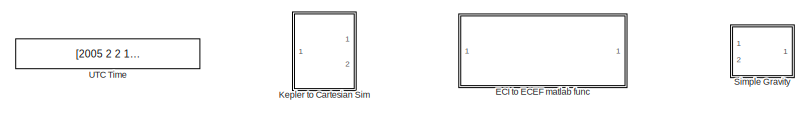
[diagram: root canvas - part 1/2, left side, full height]
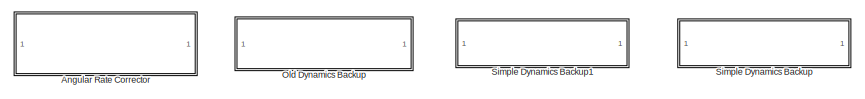
[diagram: root canvas - part 2/2, middle right region]
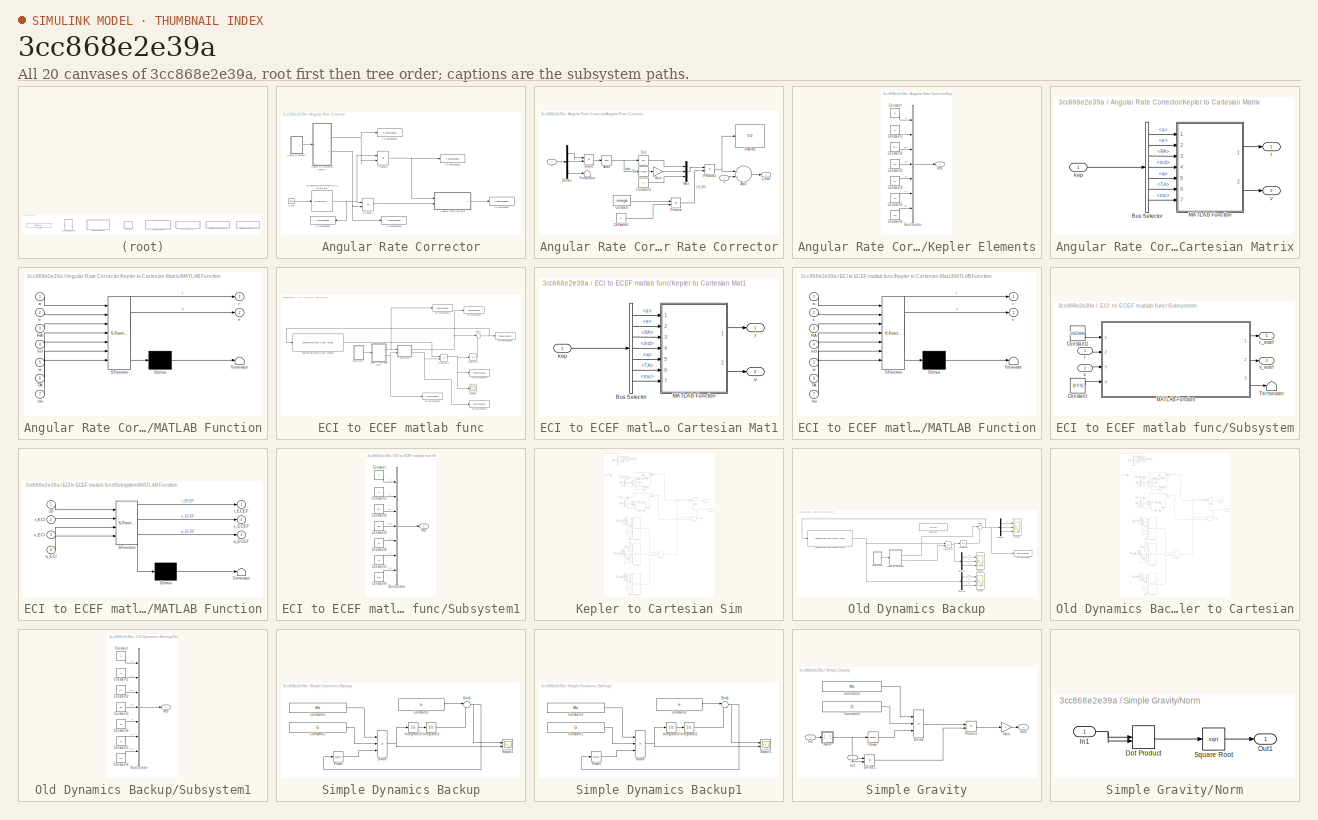
[diagram: thumbnail index - all 20 canvases of the model, root first then tree order]
MODEL slx_3cc868e2e39a
KIND model
CONFIG AbsTol = auto
CONFIG EnableMultiTasking = off
CONFIG FixedStep = auto
CONFIG MaxStep = auto
CONFIG MinStep = auto
CONFIG RelTol = 1e-3
CONFIG SampleTimeConstraint = Unconstrained
CONFIG Solver = VariableStepAuto
CONFIG SolverName = VariableStepAuto
CONFIG StartTime = 0.0
CONFIG StopTime = 10.0
BLOCK [SubSystem] Angular Rate Corrector
  Commented = on
  Ports = []
  RequestExecContextInheritance = off
BLOCK [SubSystem] Angular Rate Corrector/Angular Rate Corrector
  Commented = on
  Ports = [2, 1]
  RequestExecContextInheritance = off
BLOCK [Sum] Angular Rate Corrector/Angular Rate Corrector/Add
  InputSameDT = off
  OutDataTypeStr = Inherit: Inherit via internal rule
  Ports = [2, 1]
  SaturateOnIntegerOverflow = off
BLOCK [Trigonometry] Angular Rate Corrector/Angular Rate Corrector/Atan
  Operator = atan
  Ports = [1, 1]
BLOCK [Constant] Angular Rate Corrector/Angular Rate Corrector/Constant
  Value = omega
BLOCK [Constant] Angular Rate Corrector/Angular Rate Corrector/Constant1
  Value = a
BLOCK [Constant] Angular Rate Corrector/Angular Rate Corrector/Constant2
  Value = 0
BLOCK [Trigonometry] Angular Rate Corrector/Angular Rate Corrector/Cos
  Operator = cos
  Ports = [1, 1]
BLOCK [Demux] Angular Rate Corrector/Angular Rate Corrector/Demux
  DisplayOption = bar
  Outputs = 3
  Ports = [1, 3]
BLOCK [Display] Angular Rate Corrector/Angular Rate Corrector/Display
  Decimation = 1
  Ports = [1]
BLOCK [Product] Angular Rate Corrector/Angular Rate Corrector/Divide
  InputSameDT = off
  Inputs = */
  OutDataTypeStr = Inherit: Inherit via internal rule
  Ports = [2, 1]
  RndMeth = Floor
  SaturateOnIntegerOverflow = off
BLOCK [Gain] Angular Rate Corrector/Angular Rate Corrector/Gain
  Gain = -1
  OutDataTypeStr = Inherit: Inherit via internal rule
  ParamDataTypeStr = Inherit: Inherit via internal rule
  SaturateOnIntegerOverflow = off
BLOCK [Mux] Angular Rate Corrector/Angular Rate Corrector/Mux
  DisplayOption = bar
  Inputs = 3
  Ports = [3, 1]
BLOCK [Product] Angular Rate Corrector/Angular Rate Corrector/Product
  InputSameDT = off
  OutDataTypeStr = Inherit: Inherit via internal rule
  Ports = [2, 1]
  RndMeth = Floor
  SaturateOnIntegerOverflow = off
BLOCK [Product] Angular Rate Corrector/Angular Rate Corrector/Product1
  InputSameDT = off
  OutDataTypeStr = Inherit: Inherit via internal rule
  Ports = [2, 1]
  RndMeth = Floor
  SaturateOnIntegerOverflow = off
BLOCK [Trigonometry] Angular Rate Corrector/Angular Rate Corrector/Sin
  Ports = [1, 1]
BLOCK [Terminator] Angular Rate Corrector/Angular Rate Corrector/Terminator
BLOCK [Inport] Angular Rate Corrector/Angular Rate Corrector/r
  IconDisplay = Port number
BLOCK [Inport] Angular Rate Corrector/Angular Rate Corrector/v
  IconDisplay = Port number
  Port = 2
BLOCK [Outport] Angular Rate Corrector/Angular Rate Corrector/v_ecef
  IconDisplay = Port number
BLOCK [Clock] Angular Rate Corrector/Clock
  Commented = on
BLOCK [Reference] Angular Rate Corrector/Direction Cosine Matrix ECI to ECEF  REF=aerolibtransform2/Direction Cosine Matrix
ECI to ECEF
  AttributesFormatString = %<red>
  Commented = on
  Ports = [1, 1]
  SourceBlock = aerolibtransform2/Direction Cosine Matrix\nECI to ECEF
  SourceProductBaseCode = AE
  SourceProductName = Aerospace Blockset
  SourceType = DCMECItoECEF
BLOCK [SubSystem] Angular Rate Corrector/Kepler Elements
  Commented = on
  Ports = [0, 1]
  RequestExecContextInheritance = off
BLOCK [BusCreator] Angular Rate Corrector/Kepler Elements/Bus Creator
  DisplayOption = bar
  InheritFromInputs = on
  Inputs = 7
  Ports = [7, 1]
BLOCK [Constant] Angular Rate Corrector/Kepler Elements/Constant
  Value = a
BLOCK [Constant] Angular Rate Corrector/Kepler Elements/Constant1
  Value = e
BLOCK [Constant] Angular Rate Corrector/Kepler Elements/Constant2
  Value = RA
BLOCK [Constant] Angular Rate Corrector/Kepler Elements/Constant3
  Value = incl
BLOCK [Constant] Angular Rate Corrector/Kepler Elements/Constant4
  Value = w
BLOCK [Constant] Angular Rate Corrector/Kepler Elements/Constant5
  Value = TA
BLOCK [Constant] Angular Rate Corrector/Kepler Elements/Constant6
  Value = mu
BLOCK [Outport] Angular Rate Corrector/Kepler Elements/kep
  IconDisplay = Port number
BLOCK [SubSystem] Angular Rate Corrector/Kepler to Cartesian Matrix
  Commented = on
  Ports = [1, 2]
  RequestExecContextInheritance = off
BLOCK [BusSelector] Angular Rate Corrector/Kepler to Cartesian Matrix/Bus Selector
  OutputAsBus = off
  OutputSignals = a,e,RA,incl,w,TA,mu
  Ports = [1, 7]
BLOCK [SubSystem] Angular Rate Corrector/Kepler to Cartesian Matrix/MATLAB Function
  ErrorFcn = Stateflow.Translate.translate
  PermitHierarchicalResolution = ExplicitOnly
  Ports = [7, 2]
  RequestExecContextInheritance = off
  SFBlockType = MATLAB Function
  TreatAsAtomicUnit = on
BLOCK [Demux] Angular Rate Corrector/Kepler to Cartesian Matrix/MATLAB Function/ Demux 
  Outputs = 1
  Ports = [1, 1]
BLOCK [S-Function] Angular Rate Corrector/Kepler to Cartesian Matrix/MATLAB Function/ SFunction 
  EnableBusSupport = on
  FunctionName = sf_sfun
  PortCounts = [7 3]
  Ports = [7, 3]
  SFcnIsStateOwnerBlock = off
  SFunctionDeploymentMode = off
  Tag = Stateflow S-Function 2
BLOCK [Terminator] Angular Rate Corrector/Kepler to Cartesian Matrix/MATLAB Function/ Terminator 
BLOCK [Inport] Angular Rate Corrector/Kepler to Cartesian Matrix/MATLAB Function/RA
  IconDisplay = Port number
  Port = 3
BLOCK [Inport] Angular Rate Corrector/Kepler to Cartesian Matrix/MATLAB Function/TA
  IconDisplay = Port number
  Port = 6
BLOCK [Inport] Angular Rate Corrector/Kepler to Cartesian Matrix/MATLAB Function/a
  IconDisplay = Port number
BLOCK [Inport] Angular Rate Corrector/Kepler to Cartesian Matrix/MATLAB Function/e
  IconDisplay = Port number
  Port = 2
BLOCK [Inport] Angular Rate Corrector/Kepler to Cartesian Matrix/MATLAB Function/incl
  IconDisplay = Port number
  Port = 4
BLOCK [Inport] Angular Rate Corrector/Kepler to Cartesian Matrix/MATLAB Function/mu
  IconDisplay = Port number
  Port = 7
BLOCK [Outport] Angular Rate Corrector/Kepler to Cartesian Matrix/MATLAB Function/r
  IconDisplay = Port number
BLOCK [Outport] Angular Rate Corrector/Kepler to Cartesian Matrix/MATLAB Function/v
  IconDisplay = Port number
  Port = 2
BLOCK [Inport] Angular Rate Corrector/Kepler to Cartesian Matrix/MATLAB Function/w
  IconDisplay = Port number
  Port = 5
BLOCK [Inport] Angular Rate Corrector/Kepler to Cartesian Matrix/kep
  IconDisplay = Port number
BLOCK [Outport] Angular Rate Corrector/Kepler to Cartesian Matrix/r
  IconDisplay = Port number
BLOCK [Outport] Angular Rate Corrector/Kepler to Cartesian Matrix/v
  IconDisplay = Port number
  Port = 2
BLOCK [Product] Angular Rate Corrector/Product1
  Commented = on
  InputSameDT = off
  Multiplication = Matrix(*)
  OutDataTypeStr = Inherit: Inherit via internal rule
  Ports = [2, 1]
  RndMeth = Floor
  SaturateOnIntegerOverflow = off
BLOCK [Product] Angular Rate Corrector/Product2
  Commented = on
  InputSameDT = off
  Multiplication = Matrix(*)
  OutDataTypeStr = Inherit: Inherit via internal rule
  Ports = [2, 1]
  RndMeth = Floor
  SaturateOnIntegerOverflow = off
BLOCK [ToWorkspace] Angular Rate Corrector/To Workspace2
  Commented = on
  FixptAsFi = on
  MaxDataPoints = inf
  Ports = [1]
  SampleTime = -1
  VariableName = r0_ecef
BLOCK [ToWorkspace] Angular Rate Corrector/To Workspace4
  Commented = on
  FixptAsFi = on
  MaxDataPoints = inf
  Ports = [1]
  SampleTime = -1
  VariableName = r0_eci
BLOCK [ToWorkspace] Angular Rate Corrector/To Workspace5
  Commented = on
  FixptAsFi = on
  MaxDataPoints = inf
  Ports = [1]
  SampleTime = -1
  VariableName = v0_eci
BLOCK [ToWorkspace] Angular Rate Corrector/To Workspace6
  Commented = on
  FixptAsFi = on
  MaxDataPoints = inf
  Ports = [1]
  SampleTime = -1
  VariableName = dcm
BLOCK [ToWorkspace] Angular Rate Corrector/To Workspace7
  Commented = on
  FixptAsFi = on
  MaxDataPoints = inf
  Ports = [1]
  SampleTime = -1
  VariableName = v0_ecef
BLOCK [SubSystem] ECI to ECEF matlab func
  Commented = on
  Ports = []
  RequestExecContextInheritance = off
BLOCK [Integrator] ECI to ECEF matlab func/Integrator1
  Commented = on
  Ports = [1, 1]
BLOCK [Integrator] ECI to ECEF matlab func/Integrator2
  Commented = on
  InitialConditionSource = external
  Ports = [2, 1]
BLOCK [SubSystem] ECI to ECEF matlab func/Kepler to Cartesian Mat1
  Commented = on
  Ports = [1, 2]
  RequestExecContextInheritance = off
BLOCK [BusSelector] ECI to ECEF matlab func/Kepler to Cartesian Mat1/Bus Selector
  OutputAsBus = off
  OutputSignals = a,e,RA,incl,w,TA,mu
  Ports = [1, 7]
BLOCK [SubSystem] ECI to ECEF matlab func/Kepler to Cartesian Mat1/MATLAB Function
  ErrorFcn = Stateflow.Translate.translate
  PermitHierarchicalResolution = ExplicitOnly
  Ports = [7, 2]
  RequestExecContextInheritance = off
  SFBlockType = MATLAB Function
  TreatAsAtomicUnit = on
BLOCK [Demux] ECI to ECEF matlab func/Kepler to Cartesian Mat1/MATLAB Function/ Demux 
  Outputs = 1
  Ports = [1, 1]
BLOCK [S-Function] ECI to ECEF matlab func/Kepler to Cartesian Mat1/MATLAB Function/ SFunction 
  EnableBusSupport = on
  FunctionName = sf_sfun
  PortCounts = [7 3]
  Ports = [7, 3]
  SFcnIsStateOwnerBlock = off
  SFunctionDeploymentMode = off
  Tag = Stateflow S-Function 1
BLOCK [Terminator] ECI to ECEF matlab func/Kepler to Cartesian Mat1/MATLAB Function/ Terminator 
BLOCK [Inport] ECI to ECEF matlab func/Kepler to Cartesian Mat1/MATLAB Function/RA
  IconDisplay = Port number
  Port = 3
BLOCK [Inport] ECI to ECEF matlab func/Kepler to Cartesian Mat1/MATLAB Function/TA
  IconDisplay = Port number
  Port = 6
BLOCK [Inport] ECI to ECEF matlab func/Kepler to Cartesian Mat1/MATLAB Function/a
  IconDisplay = Port number
BLOCK [Inport] ECI to ECEF matlab func/Kepler to Cartesian Mat1/MATLAB Function/e
  IconDisplay = Port number
  Port = 2
BLOCK [Inport] ECI to ECEF matlab func/Kepler to Cartesian Mat1/MATLAB Function/incl
  IconDisplay = Port number
  Port = 4
BLOCK [Inport] ECI to ECEF matlab func/Kepler to Cartesian Mat1/MATLAB Function/mu
  IconDisplay = Port number
  Port = 7
BLOCK [Outport] ECI to ECEF matlab func/Kepler to Cartesian Mat1/MATLAB Function/r
  IconDisplay = Port number
BLOCK [Outport] ECI to ECEF matlab func/Kepler to Cartesian Mat1/MATLAB Function/v
  IconDisplay = Port number
  Port = 2
BLOCK [Inport] ECI to ECEF matlab func/Kepler to Cartesian Mat1/MATLAB Function/w
  IconDisplay = Port number
  Port = 5
BLOCK [Inport] ECI to ECEF matlab func/Kepler to Cartesian Mat1/kep
  IconDisplay = Port number
BLOCK [Outport] ECI to ECEF matlab func/Kepler to Cartesian Mat1/r
  IconDisplay = Port number
BLOCK [Outport] ECI to ECEF matlab func/Kepler to Cartesian Mat1/v
  IconDisplay = Port number
  Port = 2
BLOCK [Scope] ECI to ECEF matlab func/Scope1
  Commented = on
  Floating = off
  NumInputPorts = 1
  Ports = [1]
  ScopeSpecificationString = Simulink.scopes.TimeScopeBlockCfg('CurrentConfiguration', extmgr.ConfigurationSet(extmgr.Configuration('Core','General UI',true),extmgr.Configuration('Core','Source UI',true),extmgr.Configuration('Sources','WiredSimulink',true,'DataLoggingVariableName','ScopeData1'),extmgr.Configuration('Visuals','Time Domain',true,'SerializedDisplays',{struct('MinYLimReal','-8679.45183','MaxYLimReal','6592.60236'...<+1480ch>
BLOCK [Reference] ECI to ECEF matlab func/Spherical Harmonic Gravity Model2  REF=aerolibgravity2/Spherical Harmonic Gravity Model
  Commented = on
  Ports = [1, 1]
  SourceBlock = aerolibgravity2/Spherical Harmonic Gravity Model
  SourceProductBaseCode = AE
  SourceProductName = Aerospace Blockset
  SourceType = Spherical Harmonic Gravity Model
BLOCK [SubSystem] ECI to ECEF matlab func/Subsystem
  Commented = on
  Ports = [2, 2]
  RequestExecContextInheritance = off
BLOCK [Constant] ECI to ECEF matlab func/Subsystem/Constant
  Value = [0 0 0]
BLOCK [Constant] ECI to ECEF matlab func/Subsystem/Constant1
  Value = 2453404
BLOCK [SubSystem] ECI to ECEF matlab func/Subsystem/MATLAB Function
  ErrorFcn = Stateflow.Translate.translate
  PermitHierarchicalResolution = ExplicitOnly
  Ports = [4, 3]
  RequestExecContextInheritance = off
  SFBlockType = MATLAB Function
  TreatAsAtomicUnit = on
BLOCK [Demux] ECI to ECEF matlab func/Subsystem/MATLAB Function/ Demux 
  Outputs = 1
  Ports = [1, 1]
BLOCK [S-Function] ECI to ECEF matlab func/Subsystem/MATLAB Function/ SFunction 
  EnableBusSupport = on
  FunctionName = sf_sfun
  PortCounts = [4 4]
  Ports = [4, 4]
  SFcnIsStateOwnerBlock = off
  SFunctionDeploymentMode = off
  Tag = Stateflow S-Function 3
BLOCK [Terminator] ECI to ECEF matlab func/Subsystem/MATLAB Function/ Terminator 
BLOCK [Inport] ECI to ECEF matlab func/Subsystem/MATLAB Function/JD
  IconDisplay = Port number
BLOCK [Outport] ECI to ECEF matlab func/Subsystem/MATLAB Function/a_ECEF
  IconDisplay = Port number
  Port = 3
BLOCK [Inport] ECI to ECEF matlab func/Subsystem/MATLAB Function/a_ECI
  IconDisplay = Port number
  Port = 4
BLOCK [Outport] ECI to ECEF matlab func/Subsystem/MATLAB Function/r_ECEF
  IconDisplay = Port number
BLOCK [Inport] ECI to ECEF matlab func/Subsystem/MATLAB Function/r_ECI
  IconDisplay = Port number
  Port = 2
BLOCK [Outport] ECI to ECEF matlab func/Subsystem/MATLAB Function/v_ECEF
  IconDisplay = Port number
  Port = 2
BLOCK [Inport] ECI to ECEF matlab func/Subsystem/MATLAB Function/v_ECI
  IconDisplay = Port number
  Port = 3
BLOCK [Terminator] ECI to ECEF matlab func/Subsystem/Terminator
BLOCK [Inport] ECI to ECEF matlab func/Subsystem/r
  IconDisplay = Port number
BLOCK [Outport] ECI to ECEF matlab func/Subsystem/r_ecef
  IconDisplay = Port number
BLOCK [Inport] ECI to ECEF matlab func/Subsystem/v
  IconDisplay = Port number
  Port = 2
BLOCK [Outport] ECI to ECEF matlab func/Subsystem/v_ecef
  IconDisplay = Port number
  Port = 2
BLOCK [SubSystem] ECI to ECEF matlab func/Subsystem1
  Commented = on
  Ports = [0, 1]
  RequestExecContextInheritance = off
BLOCK [BusCreator] ECI to ECEF matlab func/Subsystem1/Bus Creator
  DisplayOption = bar
  InheritFromInputs = on
  Inputs = 7
  Ports = [7, 1]
BLOCK [Constant] ECI to ECEF matlab func/Subsystem1/Constant
  Value = a
BLOCK [Constant] ECI to ECEF matlab func/Subsystem1/Constant1
  Value = e
BLOCK [Constant] ECI to ECEF matlab func/Subsystem1/Constant2
  Value = RA
BLOCK [Constant] ECI to ECEF matlab func/Subsystem1/Constant3
  Value = incl
BLOCK [Constant] ECI to ECEF matlab func/Subsystem1/Constant4
  Value = w
BLOCK [Constant] ECI to ECEF matlab func/Subsystem1/Constant5
  Value = TA
BLOCK [Constant] ECI to ECEF matlab func/Subsystem1/Constant6
  Value = mu
BLOCK [Outport] ECI to ECEF matlab func/Subsystem1/kep
  IconDisplay = Port number
BLOCK [Sum] ECI to ECEF matlab func/Sum1
  Commented = on
  IconShape = round
  InputSameDT = off
  Inputs = |++
  OutDataTypeStr = Inherit: Inherit via internal rule
  Ports = [2, 1]
  SaturateOnIntegerOverflow = off
BLOCK [ToWorkspace] ECI to ECEF matlab func/To Workspace10
  Commented = on
  FixptAsFi = on
  MaxDataPoints = inf
  Ports = [1]
  SampleTime = -1
  Save2DSignal = 2-D array (concatenate along first dimension)
  VariableName = v_ecef
BLOCK [ToWorkspace] ECI to ECEF matlab func/To Workspace11
  Commented = on
  FixptAsFi = on
  MaxDataPoints = inf
  Ports = [1]
  SampleTime = -1
  VariableName = r0_efi
BLOCK [ToWorkspace] ECI to ECEF matlab func/To Workspace12
  Commented = on
  FixptAsFi = on
  MaxDataPoints = inf
  Ports = [1]
  SampleTime = -1
  VariableName = v0_efi
BLOCK [ToWorkspace] ECI to ECEF matlab func/To Workspace14
  Commented = on
  FixptAsFi = on
  MaxDataPoints = inf
  Ports = [1]
  SampleTime = -1
  VariableName = v0_ecef
BLOCK [ToWorkspace] ECI to ECEF matlab func/To Workspace8
  Commented = on
  FixptAsFi = on
  MaxDataPoints = inf
  Ports = [1]
  SampleTime = -1
  VariableName = r_ecef
BLOCK [ToWorkspace] ECI to ECEF matlab func/To Workspace9
  Commented = on
  FixptAsFi = on
  MaxDataPoints = inf
  Ports = [1]
  SampleTime = -1
  VariableName = r0_ecef
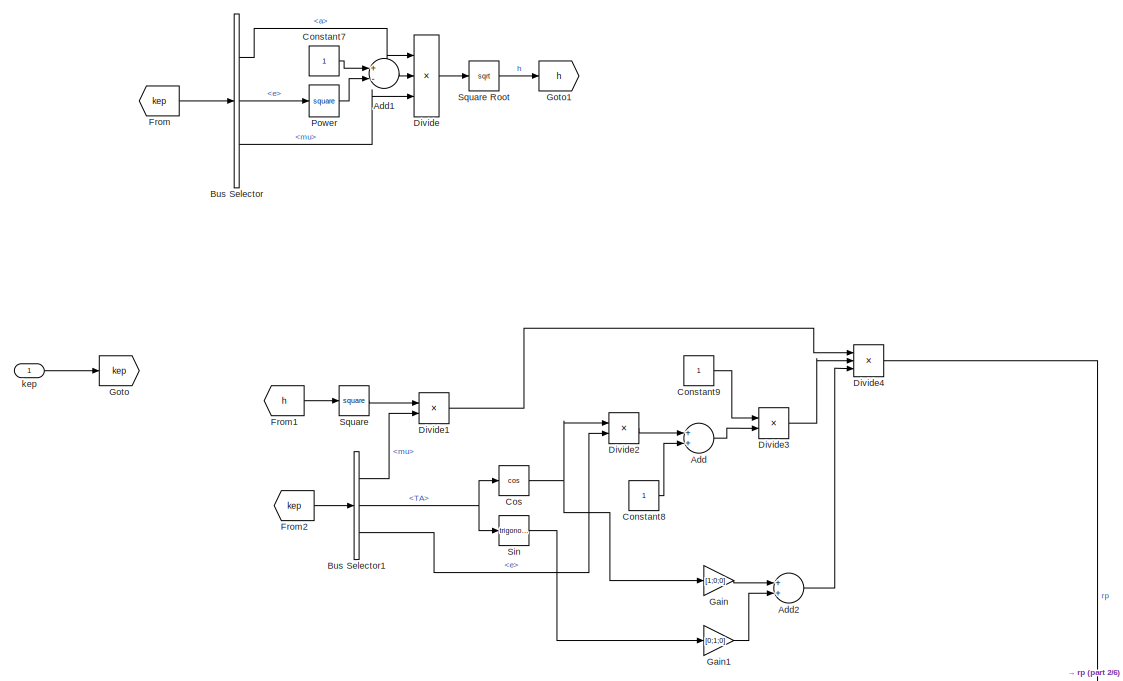
[diagram: Kepler to Cartesian Sim - part 1/6, top left region]
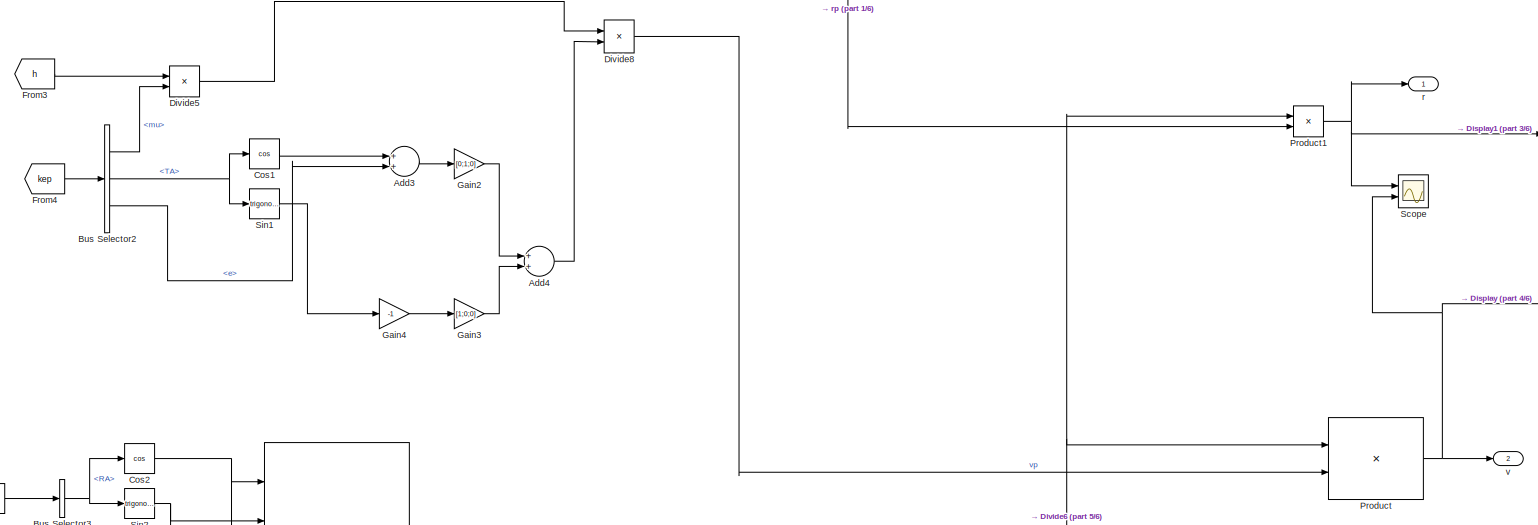
[diagram: Kepler to Cartesian Sim - part 2/6, full width, middle band]
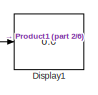
[diagram: Kepler to Cartesian Sim - part 3/6, top right region]
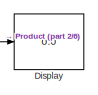
[diagram: Kepler to Cartesian Sim - part 4/6, middle right region]
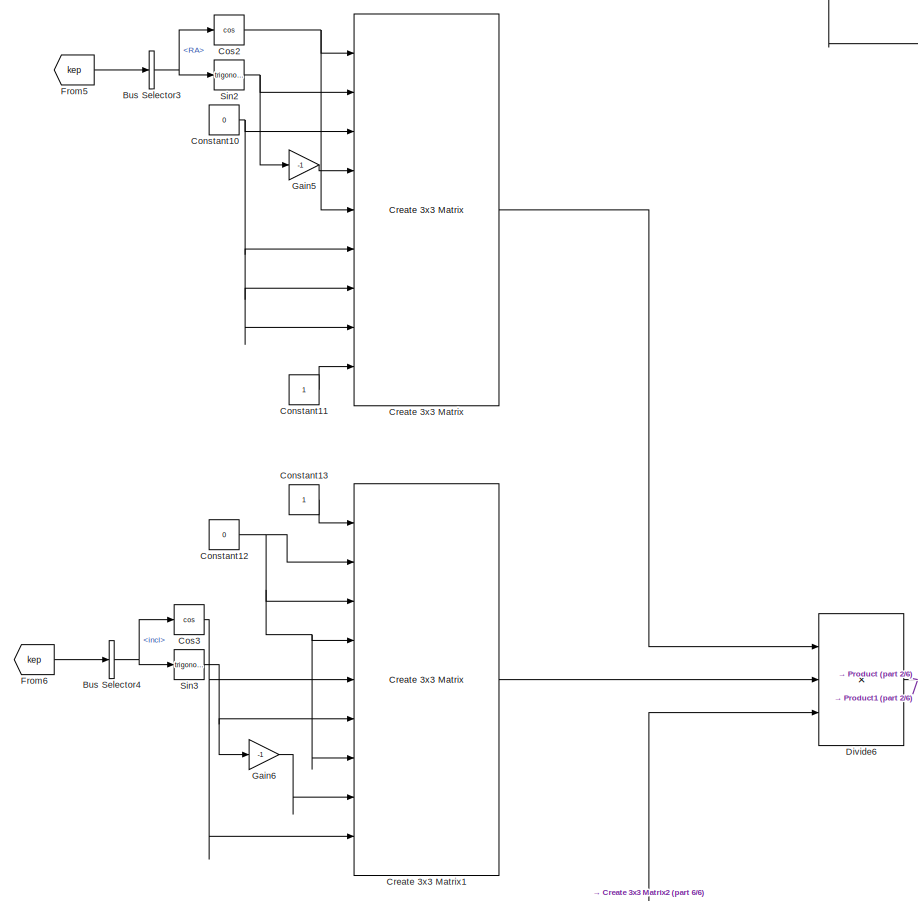
[diagram: Kepler to Cartesian Sim - part 5/6, middle left region]
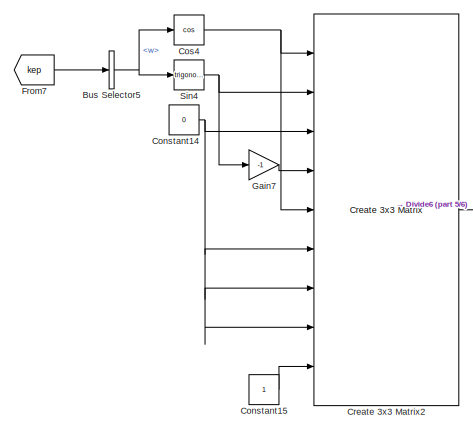
[diagram: Kepler to Cartesian Sim - part 6/6, bottom left region]
BLOCK [SubSystem] Kepler to Cartesian Sim
  Commented = on
  Ports = [1, 2]
  RequestExecContextInheritance = off
BLOCK [Sum] Kepler to Cartesian Sim/Add
  InputSameDT = off
  OutDataTypeStr = Inherit: Inherit via internal rule
  Ports = [2, 1]
  SaturateOnIntegerOverflow = off
BLOCK [Sum] Kepler to Cartesian Sim/Add1
  InputSameDT = off
  Inputs = +-
  OutDataTypeStr = Inherit: Inherit via internal rule
  Ports = [2, 1]
  SaturateOnIntegerOverflow = off
BLOCK [Sum] Kepler to Cartesian Sim/Add2
  InputSameDT = off
  OutDataTypeStr = Inherit: Inherit via internal rule
  Ports = [2, 1]
  SaturateOnIntegerOverflow = off
BLOCK [Sum] Kepler to Cartesian Sim/Add3
  InputSameDT = off
  OutDataTypeStr = Inherit: Inherit via internal rule
  Ports = [2, 1]
  SaturateOnIntegerOverflow = off
BLOCK [Sum] Kepler to Cartesian Sim/Add4
  InputSameDT = off
  OutDataTypeStr = Inherit: Inherit via internal rule
  Ports = [2, 1]
  SaturateOnIntegerOverflow = off
BLOCK [BusSelector] Kepler to Cartesian Sim/Bus Selector
  OutputAsBus = off
  OutputSignals = a,e,mu
  Ports = [1, 3]
BLOCK [BusSelector] Kepler to Cartesian Sim/Bus Selector1
  OutputAsBus = off
  OutputSignals = mu,TA,e
  Ports = [1, 3]
BLOCK [BusSelector] Kepler to Cartesian Sim/Bus Selector2
  OutputAsBus = off
  OutputSignals = mu,TA,e
  Ports = [1, 3]
BLOCK [BusSelector] Kepler to Cartesian Sim/Bus Selector3
  OutputAsBus = off
  OutputSignals = RA
  Ports = [1, 1]
BLOCK [BusSelector] Kepler to Cartesian Sim/Bus Selector4
  OutputAsBus = off
  OutputSignals = incl
  Ports = [1, 1]
BLOCK [BusSelector] Kepler to Cartesian Sim/Bus Selector5
  OutputAsBus = off
  OutputSignals = w
  Ports = [1, 1]
BLOCK [Constant] Kepler to Cartesian Sim/Constant10
  Value = 0
BLOCK [Constant] Kepler to Cartesian Sim/Constant11
BLOCK [Constant] Kepler to Cartesian Sim/Constant12
  Value = 0
BLOCK [Constant] Kepler to Cartesian Sim/Constant13
BLOCK [Constant] Kepler to Cartesian Sim/Constant14
  Value = 0
BLOCK [Constant] Kepler to Cartesian Sim/Constant15
BLOCK [Constant] Kepler to Cartesian Sim/Constant7
BLOCK [Constant] Kepler to Cartesian Sim/Constant8
BLOCK [Constant] Kepler to Cartesian Sim/Constant9
BLOCK [Trigonometry] Kepler to Cartesian Sim/Cos
  Operator = cos
  Ports = [1, 1]
BLOCK [Trigonometry] Kepler to Cartesian Sim/Cos1
  Operator = cos
  Ports = [1, 1]
BLOCK [Trigonometry] Kepler to Cartesian Sim/Cos2
  Operator = cos
  Ports = [1, 1]
BLOCK [Trigonometry] Kepler to Cartesian Sim/Cos3
  Operator = cos
  Ports = [1, 1]
BLOCK [Trigonometry] Kepler to Cartesian Sim/Cos4
  Operator = cos
  Ports = [1, 1]
BLOCK [Reference] Kepler to Cartesian Sim/Create 3x3 Matrix  REF=sharedutil/Create 3x3 Matrix
  Ports = [9, 1]
  SourceBlock = sharedutil/Create 3x3 Matrix
  SourceProductBaseCode = AE
  SourceProductName = Aerospace Blockset
  SourceType = Create 3x3 Matrix
BLOCK [Reference] Kepler to Cartesian Sim/Create 3x3 Matrix1  REF=sharedutil/Create 3x3 Matrix
  Ports = [9, 1]
  SourceBlock = sharedutil/Create 3x3 Matrix
  SourceProductBaseCode = AE
  SourceProductName = Aerospace Blockset
  SourceType = Create 3x3 Matrix
BLOCK [Reference] Kepler to Cartesian Sim/Create 3x3 Matrix2  REF=sharedutil/Create 3x3 Matrix
  Ports = [9, 1]
  SourceBlock = sharedutil/Create 3x3 Matrix
  SourceProductBaseCode = AE
  SourceProductName = Aerospace Blockset
  SourceType = Create 3x3 Matrix
BLOCK [Display] Kepler to Cartesian Sim/Display
  Decimation = 1
  Ports = [1]
BLOCK [Display] Kepler to Cartesian Sim/Display1
  Decimation = 1
  Ports = [1]
BLOCK [Product] Kepler to Cartesian Sim/Divide
  InputSameDT = off
  Inputs = 3
  OutDataTypeStr = Inherit: Inherit via internal rule
  Ports = [3, 1]
  RndMeth = Floor
  SaturateOnIntegerOverflow = off
BLOCK [Product] Kepler to Cartesian Sim/Divide1
  InputSameDT = off
  Inputs = */
  OutDataTypeStr = Inherit: Inherit via internal rule
  Ports = [2, 1]
  RndMeth = Floor
  SaturateOnIntegerOverflow = off
BLOCK [Product] Kepler to Cartesian Sim/Divide2
  InputSameDT = off
  OutDataTypeStr = Inherit: Inherit via internal rule
  Ports = [2, 1]
  RndMeth = Floor
  SaturateOnIntegerOverflow = off
BLOCK [Product] Kepler to Cartesian Sim/Divide3
  InputSameDT = off
  Inputs = */
  OutDataTypeStr = Inherit: Inherit via internal rule
  Ports = [2, 1]
  RndMeth = Floor
  SaturateOnIntegerOverflow = off
BLOCK [Product] Kepler to Cartesian Sim/Divide4
  InputSameDT = off
  Inputs = 3
  OutDataTypeStr = Inherit: Inherit via internal rule
  Ports = [3, 1]
  RndMeth = Floor
  SaturateOnIntegerOverflow = off
BLOCK [Product] Kepler to Cartesian Sim/Divide5
  InputSameDT = off
  Inputs = /*
  OutDataTypeStr = Inherit: Inherit via internal rule
  Ports = [2, 1]
  RndMeth = Floor
  SaturateOnIntegerOverflow = off
BLOCK [Product] Kepler to Cartesian Sim/Divide6
  InputSameDT = off
  Inputs = 3
  Multiplication = Matrix(*)
  OutDataTypeStr = Inherit: Inherit via internal rule
  Ports = [3, 1]
  RndMeth = Floor
  SaturateOnIntegerOverflow = off
BLOCK [Product] Kepler to Cartesian Sim/Divide8
  InputSameDT = off
  OutDataTypeStr = Inherit: Inherit via internal rule
  Ports = [2, 1]
  RndMeth = Floor
  SaturateOnIntegerOverflow = off
BLOCK [From] Kepler to Cartesian Sim/From
  GotoTag = kep
BLOCK [From] Kepler to Cartesian Sim/From1
  GotoTag = h
BLOCK [From] Kepler to Cartesian Sim/From2
  GotoTag = kep
BLOCK [From] Kepler to Cartesian Sim/From3
  GotoTag = h
BLOCK [From] Kepler to Cartesian Sim/From4
  GotoTag = kep
BLOCK [From] Kepler to Cartesian Sim/From5
  GotoTag = kep
BLOCK [From] Kepler to Cartesian Sim/From6
  GotoTag = kep
BLOCK [From] Kepler to Cartesian Sim/From7
  GotoTag = kep
BLOCK [Gain] Kepler to Cartesian Sim/Gain
  Gain = [1;0;0]
  OutDataTypeStr = Inherit: Inherit via internal rule
  ParamDataTypeStr = Inherit: Inherit via internal rule
  SaturateOnIntegerOverflow = off
BLOCK [Gain] Kepler to Cartesian Sim/Gain1
  Gain = [0;1;0]
  OutDataTypeStr = Inherit: Inherit via internal rule
  ParamDataTypeStr = Inherit: Inherit via internal rule
  SaturateOnIntegerOverflow = off
BLOCK [Gain] Kepler to Cartesian Sim/Gain2
  Gain = [0;1;0]
  OutDataTypeStr = Inherit: Inherit via internal rule
  ParamDataTypeStr = Inherit: Inherit via internal rule
  SaturateOnIntegerOverflow = off
BLOCK [Gain] Kepler to Cartesian Sim/Gain3
  Gain = [1;0;0]
  OutDataTypeStr = Inherit: Inherit via internal rule
  ParamDataTypeStr = Inherit: Inherit via internal rule
  SaturateOnIntegerOverflow = off
BLOCK [Gain] Kepler to Cartesian Sim/Gain4
  Gain = -1
  OutDataTypeStr = Inherit: Inherit via internal rule
  ParamDataTypeStr = Inherit: Inherit via internal rule
  SaturateOnIntegerOverflow = off
BLOCK [Gain] Kepler to Cartesian Sim/Gain5
  Gain = -1
  OutDataTypeStr = Inherit: Inherit via internal rule
  ParamDataTypeStr = Inherit: Inherit via internal rule
  SaturateOnIntegerOverflow = off
BLOCK [Gain] Kepler to Cartesian Sim/Gain6
  Gain = -1
  OutDataTypeStr = Inherit: Inherit via internal rule
  ParamDataTypeStr = Inherit: Inherit via internal rule
  SaturateOnIntegerOverflow = off
BLOCK [Gain] Kepler to Cartesian Sim/Gain7
  Gain = -1
  OutDataTypeStr = Inherit: Inherit via internal rule
  ParamDataTypeStr = Inherit: Inherit via internal rule
  SaturateOnIntegerOverflow = off
BLOCK [Goto] Kepler to Cartesian Sim/Goto
  GotoTag = kep
BLOCK [Goto] Kepler to Cartesian Sim/Goto1
  GotoTag = h
BLOCK [Math] Kepler to Cartesian Sim/Power
  Operator = square
  Ports = [1, 1]
  SignedPower = off
BLOCK [Product] Kepler to Cartesian Sim/Product
  InputSameDT = off
  Multiplication = Matrix(*)
  OutDataTypeStr = Inherit: Inherit via internal rule
  Ports = [2, 1]
  RndMeth = Floor
  SaturateOnIntegerOverflow = off
BLOCK [Product] Kepler to Cartesian Sim/Product1
  InputSameDT = off
  Multiplication = Matrix(*)
  OutDataTypeStr = Inherit: Inherit via internal rule
  Ports = [2, 1]
  RndMeth = Floor
  SaturateOnIntegerOverflow = off
BLOCK [Scope] Kepler to Cartesian Sim/Scope
  Floating = off
  NumInputPorts = 2
  Ports = [2]
  ScopeSpecificationString = Simulink.scopes.TimeScopeBlockCfg('CurrentConfiguration', extmgr.ConfigurationSet(extmgr.Configuration('Core','General UI',true),extmgr.Configuration('Core','Source UI',true),extmgr.Configuration('Sources','WiredSimulink',true),extmgr.Configuration('Visuals','Time Domain',true,'SerializedDisplays',{struct('MinYLimReal','-837500.00000','MaxYLimReal','7537500.00000','YLabelReal','','MinYLimMag','   ...<+2315ch>
BLOCK [Trigonometry] Kepler to Cartesian Sim/Sin
  Ports = [1, 1]
BLOCK [Trigonometry] Kepler to Cartesian Sim/Sin1
  Ports = [1, 1]
BLOCK [Trigonometry] Kepler to Cartesian Sim/Sin2
  Ports = [1, 1]
BLOCK [Trigonometry] Kepler to Cartesian Sim/Sin3
  Ports = [1, 1]
BLOCK [Trigonometry] Kepler to Cartesian Sim/Sin4
  Ports = [1, 1]
BLOCK [Math] Kepler to Cartesian Sim/Square
  Operator = square
  Ports = [1, 1]
  SignedPower = off
BLOCK [Sqrt] Kepler to Cartesian Sim/Square Root
BLOCK [Inport] Kepler to Cartesian Sim/kep
  IconDisplay = Port number
BLOCK [Outport] Kepler to Cartesian Sim/r
  IconDisplay = Port number
BLOCK [Outport] Kepler to Cartesian Sim/v
  IconDisplay = Port number
  Port = 2
BLOCK [SubSystem] Old Dynamics Backup
  Commented = on
  Ports = []
  RequestExecContextInheritance = off
BLOCK [Constant] Old Dynamics Backup/Constant
  Commented = on
  Value = [h 0 0]
BLOCK [Demux] Old Dynamics Backup/Demux
  Commented = on
  DisplayOption = bar
  Outputs = 3
  Ports = [1, 3]
BLOCK [Demux] Old Dynamics Backup/Demux1
  Commented = on
  DisplayOption = bar
  Outputs = 3
  Ports = [1, 3]
BLOCK [Demux] Old Dynamics Backup/Demux2
  Commented = on
  DisplayOption = bar
  Outputs = 3
  Ports = [1, 3]
BLOCK [Integrator] Old Dynamics Backup/Integrator
  Commented = on
  Ports = [1, 1]
BLOCK [Integrator] Old Dynamics Backup/Integrator1
  Commented = on
  InitialCondition = v0
  InitialConditionSource = external
  Ports = [2, 1]
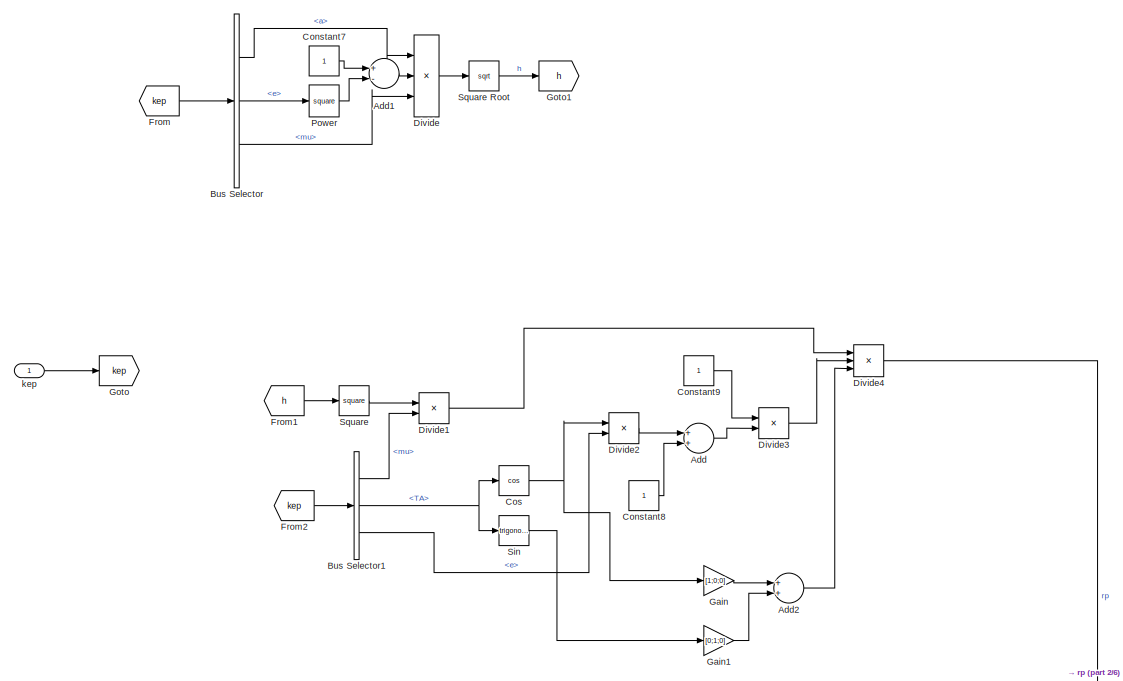
[diagram: Old Dynamics Backup/Kepler to Cartesian - part 1/6, top left region]
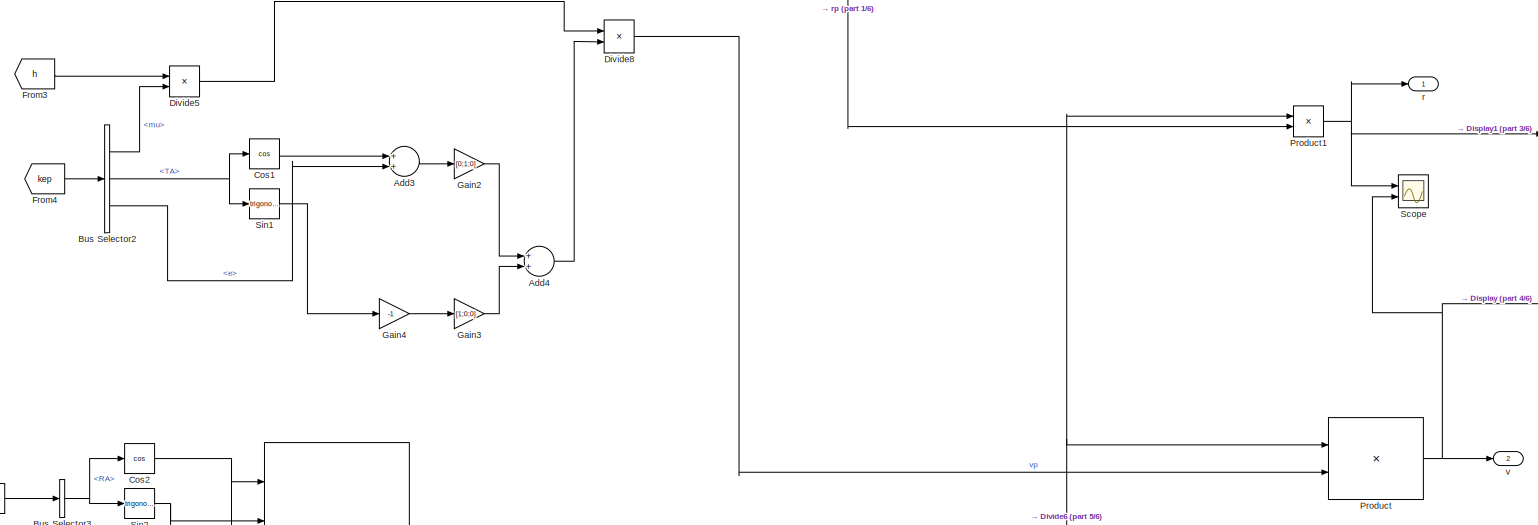
[diagram: Old Dynamics Backup/Kepler to Cartesian - part 2/6, full width, middle band]
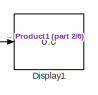
[diagram: Old Dynamics Backup/Kepler to Cartesian - part 3/6, top right region]
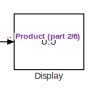
[diagram: Old Dynamics Backup/Kepler to Cartesian - part 4/6, middle right region]
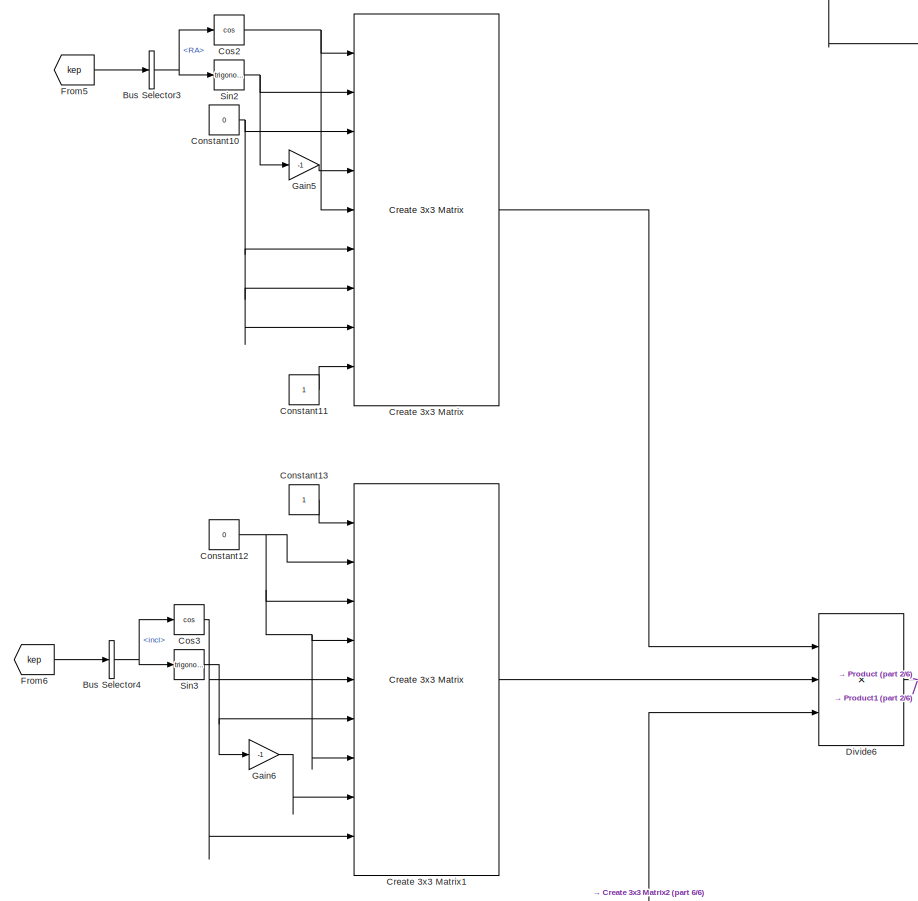
[diagram: Old Dynamics Backup/Kepler to Cartesian - part 5/6, middle left region]
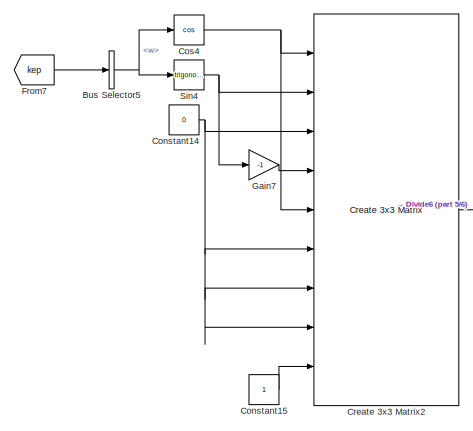
[diagram: Old Dynamics Backup/Kepler to Cartesian - part 6/6, bottom left region]
BLOCK [SubSystem] Old Dynamics Backup/Kepler to Cartesian
  Commented = on
  Ports = [1, 2]
  RequestExecContextInheritance = off
BLOCK [Sum] Old Dynamics Backup/Kepler to Cartesian/Add
  InputSameDT = off
  OutDataTypeStr = Inherit: Inherit via internal rule
  Ports = [2, 1]
  SaturateOnIntegerOverflow = off
BLOCK [Sum] Old Dynamics Backup/Kepler to Cartesian/Add1
  InputSameDT = off
  Inputs = +-
  OutDataTypeStr = Inherit: Inherit via internal rule
  Ports = [2, 1]
  SaturateOnIntegerOverflow = off
BLOCK [Sum] Old Dynamics Backup/Kepler to Cartesian/Add2
  InputSameDT = off
  OutDataTypeStr = Inherit: Inherit via internal rule
  Ports = [2, 1]
  SaturateOnIntegerOverflow = off
BLOCK [Sum] Old Dynamics Backup/Kepler to Cartesian/Add3
  InputSameDT = off
  OutDataTypeStr = Inherit: Inherit via internal rule
  Ports = [2, 1]
  SaturateOnIntegerOverflow = off
BLOCK [Sum] Old Dynamics Backup/Kepler to Cartesian/Add4
  InputSameDT = off
  OutDataTypeStr = Inherit: Inherit via internal rule
  Ports = [2, 1]
  SaturateOnIntegerOverflow = off
BLOCK [BusSelector] Old Dynamics Backup/Kepler to Cartesian/Bus Selector
  OutputAsBus = off
  OutputSignals = a,e,mu
  Ports = [1, 3]
BLOCK [BusSelector] Old Dynamics Backup/Kepler to Cartesian/Bus Selector1
  OutputAsBus = off
  OutputSignals = mu,TA,e
  Ports = [1, 3]
BLOCK [BusSelector] Old Dynamics Backup/Kepler to Cartesian/Bus Selector2
  OutputAsBus = off
  OutputSignals = mu,TA,e
  Ports = [1, 3]
BLOCK [BusSelector] Old Dynamics Backup/Kepler to Cartesian/Bus Selector3
  OutputAsBus = off
  OutputSignals = RA
  Ports = [1, 1]
BLOCK [BusSelector] Old Dynamics Backup/Kepler to Cartesian/Bus Selector4
  OutputAsBus = off
  OutputSignals = incl
  Ports = [1, 1]
BLOCK [BusSelector] Old Dynamics Backup/Kepler to Cartesian/Bus Selector5
  OutputAsBus = off
  OutputSignals = w
  Ports = [1, 1]
BLOCK [Constant] Old Dynamics Backup/Kepler to Cartesian/Constant10
  Value = 0
BLOCK [Constant] Old Dynamics Backup/Kepler to Cartesian/Constant11
BLOCK [Constant] Old Dynamics Backup/Kepler to Cartesian/Constant12
  Value = 0
BLOCK [Constant] Old Dynamics Backup/Kepler to Cartesian/Constant13
BLOCK [Constant] Old Dynamics Backup/Kepler to Cartesian/Constant14
  Value = 0
BLOCK [Constant] Old Dynamics Backup/Kepler to Cartesian/Constant15
BLOCK [Constant] Old Dynamics Backup/Kepler to Cartesian/Constant7
BLOCK [Constant] Old Dynamics Backup/Kepler to Cartesian/Constant8
BLOCK [Constant] Old Dynamics Backup/Kepler to Cartesian/Constant9
BLOCK [Trigonometry] Old Dynamics Backup/Kepler to Cartesian/Cos
  Operator = cos
  Ports = [1, 1]
BLOCK [Trigonometry] Old Dynamics Backup/Kepler to Cartesian/Cos1
  Operator = cos
  Ports = [1, 1]
BLOCK [Trigonometry] Old Dynamics Backup/Kepler to Cartesian/Cos2
  Operator = cos
  Ports = [1, 1]
BLOCK [Trigonometry] Old Dynamics Backup/Kepler to Cartesian/Cos3
  Operator = cos
  Ports = [1, 1]
BLOCK [Trigonometry] Old Dynamics Backup/Kepler to Cartesian/Cos4
  Operator = cos
  Ports = [1, 1]
BLOCK [Reference] Old Dynamics Backup/Kepler to Cartesian/Create 3x3 Matrix  REF=sharedutil/Create 3x3 Matrix
  Ports = [9, 1]
  SourceBlock = sharedutil/Create 3x3 Matrix
  SourceProductBaseCode = AE
  SourceProductName = Aerospace Blockset
  SourceType = Create 3x3 Matrix
BLOCK [Reference] Old Dynamics Backup/Kepler to Cartesian/Create 3x3 Matrix1  REF=sharedutil/Create 3x3 Matrix
  Ports = [9, 1]
  SourceBlock = sharedutil/Create 3x3 Matrix
  SourceProductBaseCode = AE
  SourceProductName = Aerospace Blockset
  SourceType = Create 3x3 Matrix
BLOCK [Reference] Old Dynamics Backup/Kepler to Cartesian/Create 3x3 Matrix2  REF=sharedutil/Create 3x3 Matrix
  Ports = [9, 1]
  SourceBlock = sharedutil/Create 3x3 Matrix
  SourceProductBaseCode = AE
  SourceProductName = Aerospace Blockset
  SourceType = Create 3x3 Matrix
BLOCK [Display] Old Dynamics Backup/Kepler to Cartesian/Display
  Decimation = 1
  Ports = [1]
BLOCK [Display] Old Dynamics Backup/Kepler to Cartesian/Display1
  Decimation = 1
  Ports = [1]
BLOCK [Product] Old Dynamics Backup/Kepler to Cartesian/Divide
  InputSameDT = off
  Inputs = 3
  OutDataTypeStr = Inherit: Inherit via internal rule
  Ports = [3, 1]
  RndMeth = Floor
  SaturateOnIntegerOverflow = off
BLOCK [Product] Old Dynamics Backup/Kepler to Cartesian/Divide1
  InputSameDT = off
  Inputs = */
  OutDataTypeStr = Inherit: Inherit via internal rule
  Ports = [2, 1]
  RndMeth = Floor
  SaturateOnIntegerOverflow = off
BLOCK [Product] Old Dynamics Backup/Kepler to Cartesian/Divide2
  InputSameDT = off
  OutDataTypeStr = Inherit: Inherit via internal rule
  Ports = [2, 1]
  RndMeth = Floor
  SaturateOnIntegerOverflow = off
BLOCK [Product] Old Dynamics Backup/Kepler to Cartesian/Divide3
  InputSameDT = off
  Inputs = */
  OutDataTypeStr = Inherit: Inherit via internal rule
  Ports = [2, 1]
  RndMeth = Floor
  SaturateOnIntegerOverflow = off
BLOCK [Product] Old Dynamics Backup/Kepler to Cartesian/Divide4
  InputSameDT = off
  Inputs = 3
  OutDataTypeStr = Inherit: Inherit via internal rule
  Ports = [3, 1]
  RndMeth = Floor
  SaturateOnIntegerOverflow = off
BLOCK [Product] Old Dynamics Backup/Kepler to Cartesian/Divide5
  InputSameDT = off
  Inputs = /*
  OutDataTypeStr = Inherit: Inherit via internal rule
  Ports = [2, 1]
  RndMeth = Floor
  SaturateOnIntegerOverflow = off
BLOCK [Product] Old Dynamics Backup/Kepler to Cartesian/Divide6
  InputSameDT = off
  Inputs = 3
  Multiplication = Matrix(*)
  OutDataTypeStr = Inherit: Inherit via internal rule
  Ports = [3, 1]
  RndMeth = Floor
  SaturateOnIntegerOverflow = off
BLOCK [Product] Old Dynamics Backup/Kepler to Cartesian/Divide8
  InputSameDT = off
  OutDataTypeStr = Inherit: Inherit via internal rule
  Ports = [2, 1]
  RndMeth = Floor
  SaturateOnIntegerOverflow = off
BLOCK [From] Old Dynamics Backup/Kepler to Cartesian/From
  GotoTag = kep
BLOCK [From] Old Dynamics Backup/Kepler to Cartesian/From1
  GotoTag = h
BLOCK [From] Old Dynamics Backup/Kepler to Cartesian/From2
  GotoTag = kep
BLOCK [From] Old Dynamics Backup/Kepler to Cartesian/From3
  GotoTag = h
BLOCK [From] Old Dynamics Backup/Kepler to Cartesian/From4
  GotoTag = kep
BLOCK [From] Old Dynamics Backup/Kepler to Cartesian/From5
  GotoTag = kep
BLOCK [From] Old Dynamics Backup/Kepler to Cartesian/From6
  GotoTag = kep
BLOCK [From] Old Dynamics Backup/Kepler to Cartesian/From7
  GotoTag = kep
BLOCK [Gain] Old Dynamics Backup/Kepler to Cartesian/Gain
  Gain = [1;0;0]
  OutDataTypeStr = Inherit: Inherit via internal rule
  ParamDataTypeStr = Inherit: Inherit via internal rule
  SaturateOnIntegerOverflow = off
BLOCK [Gain] Old Dynamics Backup/Kepler to Cartesian/Gain1
  Gain = [0;1;0]
  OutDataTypeStr = Inherit: Inherit via internal rule
  ParamDataTypeStr = Inherit: Inherit via internal rule
  SaturateOnIntegerOverflow = off
BLOCK [Gain] Old Dynamics Backup/Kepler to Cartesian/Gain2
  Gain = [0;1;0]
  OutDataTypeStr = Inherit: Inherit via internal rule
  ParamDataTypeStr = Inherit: Inherit via internal rule
  SaturateOnIntegerOverflow = off
BLOCK [Gain] Old Dynamics Backup/Kepler to Cartesian/Gain3
  Gain = [1;0;0]
  OutDataTypeStr = Inherit: Inherit via internal rule
  ParamDataTypeStr = Inherit: Inherit via internal rule
  SaturateOnIntegerOverflow = off
BLOCK [Gain] Old Dynamics Backup/Kepler to Cartesian/Gain4
  Gain = -1
  OutDataTypeStr = Inherit: Inherit via internal rule
  ParamDataTypeStr = Inherit: Inherit via internal rule
  SaturateOnIntegerOverflow = off
BLOCK [Gain] Old Dynamics Backup/Kepler to Cartesian/Gain5
  Gain = -1
  OutDataTypeStr = Inherit: Inherit via internal rule
  ParamDataTypeStr = Inherit: Inherit via internal rule
  SaturateOnIntegerOverflow = off
BLOCK [Gain] Old Dynamics Backup/Kepler to Cartesian/Gain6
  Gain = -1
  OutDataTypeStr = Inherit: Inherit via internal rule
  ParamDataTypeStr = Inherit: Inherit via internal rule
  SaturateOnIntegerOverflow = off
BLOCK [Gain] Old Dynamics Backup/Kepler to Cartesian/Gain7
  Gain = -1
  OutDataTypeStr = Inherit: Inherit via internal rule
  ParamDataTypeStr = Inherit: Inherit via internal rule
  SaturateOnIntegerOverflow = off
BLOCK [Goto] Old Dynamics Backup/Kepler to Cartesian/Goto
  GotoTag = kep
BLOCK [Goto] Old Dynamics Backup/Kepler to Cartesian/Goto1
  GotoTag = h
BLOCK [Math] Old Dynamics Backup/Kepler to Cartesian/Power
  Operator = square
  Ports = [1, 1]
  SignedPower = off
BLOCK [Product] Old Dynamics Backup/Kepler to Cartesian/Product
  InputSameDT = off
  Multiplication = Matrix(*)
  OutDataTypeStr = Inherit: Inherit via internal rule
  Ports = [2, 1]
  RndMeth = Floor
  SaturateOnIntegerOverflow = off
BLOCK [Product] Old Dynamics Backup/Kepler to Cartesian/Product1
  InputSameDT = off
  Multiplication = Matrix(*)
  OutDataTypeStr = Inherit: Inherit via internal rule
  Ports = [2, 1]
  RndMeth = Floor
  SaturateOnIntegerOverflow = off
BLOCK [Scope] Old Dynamics Backup/Kepler to Cartesian/Scope
  Floating = off
  NumInputPorts = 2
  Ports = [2]
  ScopeSpecificationString = Simulink.scopes.TimeScopeBlockCfg('CurrentConfiguration', extmgr.ConfigurationSet(extmgr.Configuration('Core','General UI',true),extmgr.Configuration('Core','Source UI',true),extmgr.Configuration('Sources','WiredSimulink',true),extmgr.Configuration('Visuals','Time Domain',true,'SerializedDisplays',{struct('MinYLimReal','-837500.00000','MaxYLimReal','7537500.00000','YLabelReal','','MinYLimMag','   ...<+2315ch>
BLOCK [Trigonometry] Old Dynamics Backup/Kepler to Cartesian/Sin
  Ports = [1, 1]
BLOCK [Trigonometry] Old Dynamics Backup/Kepler to Cartesian/Sin1
  Ports = [1, 1]
BLOCK [Trigonometry] Old Dynamics Backup/Kepler to Cartesian/Sin2
  Ports = [1, 1]
BLOCK [Trigonometry] Old Dynamics Backup/Kepler to Cartesian/Sin3
  Ports = [1, 1]
BLOCK [Trigonometry] Old Dynamics Backup/Kepler to Cartesian/Sin4
  Ports = [1, 1]
BLOCK [Math] Old Dynamics Backup/Kepler to Cartesian/Square
  Operator = square
  Ports = [1, 1]
  SignedPower = off
BLOCK [Sqrt] Old Dynamics Backup/Kepler to Cartesian/Square Root
BLOCK [Inport] Old Dynamics Backup/Kepler to Cartesian/kep
  IconDisplay = Port number
BLOCK [Outport] Old Dynamics Backup/Kepler to Cartesian/r
  IconDisplay = Port number
BLOCK [Outport] Old Dynamics Backup/Kepler to Cartesian/v
  IconDisplay = Port number
  Port = 2
BLOCK [Scope] Old Dynamics Backup/Scope2
  Commented = on
  Floating = off
  NumInputPorts = 3
  Ports = [3]
  ScopeSpecificationString = Simulink.scopes.TimeScopeBlockCfg('CurrentConfiguration', extmgr.ConfigurationSet(extmgr.Configuration('Core','General UI',true),extmgr.Configuration('Core','Source UI',true),extmgr.Configuration('Sources','WiredSimulink',true,'DataLoggingVariableName','ScopeData2'),extmgr.Configuration('Visuals','Time Domain',true,'SerializedDisplays',{struct('MinYLimReal','-11.04961','MaxYLimReal','10.51949','YL...<+2805ch>
BLOCK [Scope] Old Dynamics Backup/Scope3
  Commented = on
  Floating = off
  NumInputPorts = 3
  Ports = [3]
  ScopeSpecificationString = Simulink.scopes.TimeScopeBlockCfg('CurrentConfiguration', extmgr.ConfigurationSet(extmgr.Configuration('Core','General UI',true),extmgr.Configuration('Core','Source UI',true),extmgr.Configuration('Sources','WiredSimulink',true),extmgr.Configuration('Visuals','Time Domain',true,'SerializedDisplays',{struct('MinYLimReal','-8609869.32491','MaxYLimReal','8401096.59166','YLabelReal','','MinYLimMag','  ...<+2830ch>
BLOCK [Scope] Old Dynamics Backup/Scope4
  Commented = on
  Floating = off
  NumInputPorts = 3
  Ports = [3]
  ScopeSpecificationString = Simulink.scopes.TimeScopeBlockCfg('CurrentConfiguration', extmgr.ConfigurationSet(extmgr.Configuration('Core','General UI',true),extmgr.Configuration('Core','Source UI',true),extmgr.Configuration('Sources','WiredSimulink',true,'DataLoggingVariableName','ScopeData3'),extmgr.Configuration('Visuals','Time Domain',true,'SerializedDisplays',{struct('MinYLimReal','-9575.99344','MaxYLimReal','9574.34737'...<+2847ch>
BLOCK [Reference] Old Dynamics Backup/Spherical Harmonic Gravity Model  REF=aerolibgravity2/Spherical Harmonic Gravity Model
  Commented = on
  Ports = [1, 1]
  SourceBlock = aerolibgravity2/Spherical Harmonic Gravity Model
  SourceProductBaseCode = AE
  SourceProductName = Aerospace Blockset
  SourceType = Spherical Harmonic Gravity Model
BLOCK [SubSystem] Old Dynamics Backup/Subsystem1
  Commented = on
  Ports = [0, 1]
  RequestExecContextInheritance = off
BLOCK [BusCreator] Old Dynamics Backup/Subsystem1/Bus Creator
  DisplayOption = bar
  InheritFromInputs = on
  Inputs = 7
  Ports = [7, 1]
BLOCK [Constant] Old Dynamics Backup/Subsystem1/Constant
  Value = a
BLOCK [Constant] Old Dynamics Backup/Subsystem1/Constant1
  Value = e
BLOCK [Constant] Old Dynamics Backup/Subsystem1/Constant2
  Value = RA
BLOCK [Constant] Old Dynamics Backup/Subsystem1/Constant3
  Value = incl
BLOCK [Constant] Old Dynamics Backup/Subsystem1/Constant4
  Value = w
BLOCK [Constant] Old Dynamics Backup/Subsystem1/Constant5
  Value = TA
BLOCK [Constant] Old Dynamics Backup/Subsystem1/Constant6
  Value = mu
BLOCK [Outport] Old Dynamics Backup/Subsystem1/kep
  IconDisplay = Port number
BLOCK [Sum] Old Dynamics Backup/Sum
  Commented = on
  IconShape = round
  InputSameDT = off
  Inputs = |++
  OutDataTypeStr = Inherit: Inherit via internal rule
  Ports = [2, 1]
  SaturateOnIntegerOverflow = off
BLOCK [ToWorkspace] Old Dynamics Backup/To Workspace
  Commented = on
  FixptAsFi = on
  MaxDataPoints = inf
  Ports = [1]
  SampleTime = -1
  VariableName = pos
BLOCK [SubSystem] Simple Dynamics Backup
  Commented = on
  Ports = []
  RequestExecContextInheritance = off
BLOCK [Constant] Simple Dynamics Backup/Constant1
  Commented = on
  Value = G
BLOCK [Constant] Simple Dynamics Backup/Constant2
  Commented = on
  Value = h
BLOCK [Constant] Simple Dynamics Backup/Constant3
  Commented = on
  Value = Me
BLOCK [Product] Simple Dynamics Backup/Divide
  Commented = on
  InputSameDT = off
  Inputs = **/
  OutDataTypeStr = Inherit: Inherit via internal rule
  Ports = [3, 1]
  RndMeth = Floor
  SaturateOnIntegerOverflow = off
BLOCK [Integrator] Simple Dynamics Backup/Integrator2
  Commented = on
  Ports = [1, 1]
BLOCK [Integrator] Simple Dynamics Backup/Integrator3
  Commented = on
  Ports = [1, 1]
BLOCK [Math] Simple Dynamics Backup/Power
  Commented = on
  Operator = square
  Ports = [1, 1]
  SignedPower = off
BLOCK [Scope] Simple Dynamics Backup/Scope1
  Commented = on
  Floating = off
  NumInputPorts = 2
  Ports = [2]
  ScopeSpecificationString = Simulink.scopes.TimeScopeBlockCfg('CurrentConfiguration', extmgr.ConfigurationSet(extmgr.Configuration('Core','General UI',true),extmgr.Configuration('Core','Source UI',true),extmgr.Configuration('Sources','WiredSimulink',true,'DataLoggingVariableName','ScopeData1'),extmgr.Configuration('Visuals','Time Domain',true,'SerializedDisplays',{struct('MinYLimReal','-5271822762.66344','MaxYLimReal','59320...<+2076ch>
BLOCK [Sum] Simple Dynamics Backup/Sum1
  Commented = on
  IconShape = round
  InputSameDT = off
  Inputs = |+-
  OutDataTypeStr = Inherit: Inherit via internal rule
  Ports = [2, 1]
  SaturateOnIntegerOverflow = off
BLOCK [SubSystem] Simple Dynamics Backup1
  Commented = on
  Ports = []
  RequestExecContextInheritance = off
BLOCK [Constant] Simple Dynamics Backup1/Constant1
  Commented = on
  Value = G
BLOCK [Constant] Simple Dynamics Backup1/Constant2
  Commented = on
  Value = h
BLOCK [Constant] Simple Dynamics Backup1/Constant3
  Commented = on
  Value = Me
BLOCK [Product] Simple Dynamics Backup1/Divide
  Commented = on
  InputSameDT = off
  Inputs = **/
  OutDataTypeStr = Inherit: Inherit via internal rule
  Ports = [3, 1]
  RndMeth = Floor
  SaturateOnIntegerOverflow = off
BLOCK [Integrator] Simple Dynamics Backup1/Integrator2
  Commented = on
  Ports = [1, 1]
BLOCK [Integrator] Simple Dynamics Backup1/Integrator3
  Commented = on
  Ports = [1, 1]
BLOCK [Math] Simple Dynamics Backup1/Power
  Commented = on
  Operator = square
  Ports = [1, 1]
  SignedPower = off
BLOCK [Scope] Simple Dynamics Backup1/Scope1
  Commented = on
  Floating = off
  NumInputPorts = 2
  Ports = [2]
  ScopeSpecificationString = Simulink.scopes.TimeScopeBlockCfg('CurrentConfiguration', extmgr.ConfigurationSet(extmgr.Configuration('Core','General UI',true),extmgr.Configuration('Core','Source UI',true),extmgr.Configuration('Sources','WiredSimulink',true,'DataLoggingVariableName','ScopeData1'),extmgr.Configuration('Visuals','Time Domain',true,'SerializedDisplays',{struct('MinYLimReal','-5271822762.66344','MaxYLimReal','59320...<+2076ch>
BLOCK [Sum] Simple Dynamics Backup1/Sum1
  Commented = on
  IconShape = round
  InputSameDT = off
  Inputs = |+-
  OutDataTypeStr = Inherit: Inherit via internal rule
  Ports = [2, 1]
  SaturateOnIntegerOverflow = off
BLOCK [SubSystem] Simple Gravity
  Commented = on
  Ports = [2, 1]
  RequestExecContextInheritance = off
BLOCK [Constant] Simple Gravity/Constant1
  Commented = on
  Value = G
BLOCK [Constant] Simple Gravity/Constant3
  Commented = on
  Value = Me
BLOCK [Product] Simple Gravity/Divide
  Commented = on
  InputSameDT = off
  Inputs = **/
  OutDataTypeStr = Inherit: Inherit via internal rule
  Ports = [3, 1]
  RndMeth = Floor
  SaturateOnIntegerOverflow = off
BLOCK [Product] Simple Gravity/Divide1
  Commented = on
  InputSameDT = off
  Inputs = */
  OutDataTypeStr = Inherit: Inherit via internal rule
  Ports = [2, 1]
  RndMeth = Floor
  SaturateOnIntegerOverflow = off
BLOCK [Gain] Simple Gravity/Gain
  Commented = on
  Gain = -1
  OutDataTypeStr = Inherit: Inherit via internal rule
  ParamDataTypeStr = Inherit: Inherit via internal rule
  SaturateOnIntegerOverflow = off
BLOCK [Inport] Simple Gravity/In1
  IconDisplay = Port number
BLOCK [Inport] Simple Gravity/In2
  IconDisplay = Port number
  Port = 2
BLOCK [SubSystem] Simple Gravity/Norm
  Commented = on
  Ports = [1, 1]
  RequestExecContextInheritance = off
  ShowPortLabels = none
BLOCK [DotProduct] Simple Gravity/Norm/Dot Product
  OutDataTypeStr = Inherit: Inherit via internal rule
BLOCK [Inport] Simple Gravity/Norm/In1
  IconDisplay = Port number
BLOCK [Outport] Simple Gravity/Norm/Out1
  IconDisplay = Port number
BLOCK [Sqrt] Simple Gravity/Norm/Square Root
BLOCK [Outport] Simple Gravity/Out1
  IconDisplay = Port number
BLOCK [Math] Simple Gravity/Power
  Commented = on
  Operator = square
  Ports = [1, 1]
  SignedPower = off
BLOCK [Product] Simple Gravity/Product
  Commented = on
  InputSameDT = off
  OutDataTypeStr = Inherit: Inherit via internal rule
  Ports = [2, 1]
  RndMeth = Floor
  SaturateOnIntegerOverflow = off
BLOCK [Constant] UTC Time
  Commented = on
  Value = [2005 2 2 12 0 0]
LINE Angular Rate Corrector/Angular Rate Corrector/Add:1 -> Angular Rate Corrector/Angular Rate Corrector/v_ecef:1
NET Angular Rate Corrector/Angular Rate Corrector/Atan:1 -> Angular Rate Corrector/Angular Rate Corrector/Cos:1, Angular Rate Corrector/Angular Rate Corrector/Sin:1
LINE Angular Rate Corrector/Angular Rate Corrector/Constant1:1 -> Angular Rate Corrector/Angular Rate Corrector/Product:2
LINE Angular Rate Corrector/Angular Rate Corrector/Constant2:1 -> Angular Rate Corrector/Angular Rate Corrector/Mux:3
LINE Angular Rate Corrector/Angular Rate Corrector/Constant:1 -> Angular Rate Corrector/Angular Rate Corrector/Product:1
LINE Angular Rate Corrector/Angular Rate Corrector/Cos:1 -> Angular Rate Corrector/Angular Rate Corrector/Mux:1
LINE Angular Rate Corrector/Angular Rate Corrector/Demux:1 -> Angular Rate Corrector/Angular Rate Corrector/Divide:1
LINE Angular Rate Corrector/Angular Rate Corrector/Demux:2 -> Angular Rate Corrector/Angular Rate Corrector/Divide:2
LINE Angular Rate Corrector/Angular Rate Corrector/Demux:3 -> Angular Rate Corrector/Angular Rate Corrector/Terminator:1
LINE Angular Rate Corrector/Angular Rate Corrector/Divide:1 -> Angular Rate Corrector/Angular Rate Corrector/Atan:1
LINE Angular Rate Corrector/Angular Rate Corrector/Gain:1 -> Angular Rate Corrector/Angular Rate Corrector/Mux:2
LINE Angular Rate Corrector/Angular Rate Corrector/Mux:1 -> Angular Rate Corrector/Angular Rate Corrector/Product1:1
NET Angular Rate Corrector/Angular Rate Corrector/Product1:1 -> Angular Rate Corrector/Angular Rate Corrector/Add:1, Angular Rate Corrector/Angular Rate Corrector/Display:1
LINE Angular Rate Corrector/Angular Rate Corrector/Product:1 -> Angular Rate Corrector/Angular Rate Corrector/Product1:2
LINE Angular Rate Corrector/Angular Rate Corrector/Sin:1 -> Angular Rate Corrector/Angular Rate Corrector/Gain:1
LINE Angular Rate Corrector/Angular Rate Corrector/r:1 -> Angular Rate Corrector/Angular Rate Corrector/Demux:1
LINE Angular Rate Corrector/Angular Rate Corrector/v:1 -> Angular Rate Corrector/Angular Rate Corrector/Add:2
LINE Angular Rate Corrector/Angular Rate Corrector:1 -> Angular Rate Corrector/To Workspace7:1
LINE Angular Rate Corrector/Clock:1 -> Angular Rate Corrector/Direction Cosine Matrix ECI to ECEF:1
NET Angular Rate Corrector/Direction Cosine Matrix ECI to ECEF:1 -> Angular Rate Corrector/Product1:1, Angular Rate Corrector/Product2:1, Angular Rate Corrector/To Workspace6:1
LINE Angular Rate Corrector/Kepler Elements/Bus Creator:1 -> Angular Rate Corrector/Kepler Elements/kep:1
LINE Angular Rate Corrector/Kepler Elements/Constant1:1 -> Angular Rate Corrector/Kepler Elements/Bus Creator:2
LINE Angular Rate Corrector/Kepler Elements/Constant2:1 -> Angular Rate Corrector/Kepler Elements/Bus Creator:3
LINE Angular Rate Corrector/Kepler Elements/Constant3:1 -> Angular Rate Corrector/Kepler Elements/Bus Creator:4
LINE Angular Rate Corrector/Kepler Elements/Constant4:1 -> Angular Rate Corrector/Kepler Elements/Bus Creator:5
LINE Angular Rate Corrector/Kepler Elements/Constant5:1 -> Angular Rate Corrector/Kepler Elements/Bus Creator:6
LINE Angular Rate Corrector/Kepler Elements/Constant6:1 -> Angular Rate Corrector/Kepler Elements/Bus Creator:7
LINE Angular Rate Corrector/Kepler Elements/Constant:1 -> Angular Rate Corrector/Kepler Elements/Bus Creator:1
LINE Angular Rate Corrector/Kepler Elements:1 -> Angular Rate Corrector/Kepler to Cartesian Matrix:1
LINE Angular Rate Corrector/Kepler to Cartesian Matrix/Bus Selector:1 -> Angular Rate Corrector/Kepler to Cartesian Matrix/MATLAB Function:1
LINE Angular Rate Corrector/Kepler to Cartesian Matrix/Bus Selector:2 -> Angular Rate Corrector/Kepler to Cartesian Matrix/MATLAB Function:2
LINE Angular Rate Corrector/Kepler to Cartesian Matrix/Bus Selector:3 -> Angular Rate Corrector/Kepler to Cartesian Matrix/MATLAB Function:3
LINE Angular Rate Corrector/Kepler to Cartesian Matrix/Bus Selector:4 -> Angular Rate Corrector/Kepler to Cartesian Matrix/MATLAB Function:4
LINE Angular Rate Corrector/Kepler to Cartesian Matrix/Bus Selector:5 -> Angular Rate Corrector/Kepler to Cartesian Matrix/MATLAB Function:5
LINE Angular Rate Corrector/Kepler to Cartesian Matrix/Bus Selector:6 -> Angular Rate Corrector/Kepler to Cartesian Matrix/MATLAB Function:6
LINE Angular Rate Corrector/Kepler to Cartesian Matrix/Bus Selector:7 -> Angular Rate Corrector/Kepler to Cartesian Matrix/MATLAB Function:7
LINE Angular Rate Corrector/Kepler to Cartesian Matrix/MATLAB Function:1 -> Angular Rate Corrector/Kepler to Cartesian Matrix/r:1
LINE Angular Rate Corrector/Kepler to Cartesian Matrix/MATLAB Function:2 -> Angular Rate Corrector/Kepler to Cartesian Matrix/v:1
LINE Angular Rate Corrector/Kepler to Cartesian Matrix/kep:1 -> Angular Rate Corrector/Kepler to Cartesian Matrix/Bus Selector:1
NET Angular Rate Corrector/Kepler to Cartesian Matrix:1 -> Angular Rate Corrector/Product2:2, Angular Rate Corrector/To Workspace4:1
NET Angular Rate Corrector/Kepler to Cartesian Matrix:2 -> Angular Rate Corrector/Product1:2, Angular Rate Corrector/To Workspace5:1
LINE Angular Rate Corrector/Product1:1 -> Angular Rate Corrector/Angular Rate Corrector:2
NET Angular Rate Corrector/Product2:1 -> Angular Rate Corrector/Angular Rate Corrector:1, Angular Rate Corrector/To Workspace2:1
LINE ECI to ECEF matlab func/Integrator1:1 -> ECI to ECEF matlab func/Sum1:2
NET ECI to ECEF matlab func/Integrator2:1 -> ECI to ECEF matlab func/Integrator1:1, ECI to ECEF matlab func/Scope1:1, ECI to ECEF matlab func/To Workspace10:1
LINE ECI to ECEF matlab func/Kepler to Cartesian Mat1/Bus Selector:1 -> ECI to ECEF matlab func/Kepler to Cartesian Mat1/MATLAB Function:1
LINE ECI to ECEF matlab func/Kepler to Cartesian Mat1/Bus Selector:2 -> ECI to ECEF matlab func/Kepler to Cartesian Mat1/MATLAB Function:2
LINE ECI to ECEF matlab func/Kepler to Cartesian Mat1/Bus Selector:3 -> ECI to ECEF matlab func/Kepler to Cartesian Mat1/MATLAB Function:3
LINE ECI to ECEF matlab func/Kepler to Cartesian Mat1/Bus Selector:4 -> ECI to ECEF matlab func/Kepler to Cartesian Mat1/MATLAB Function:4
LINE ECI to ECEF matlab func/Kepler to Cartesian Mat1/Bus Selector:5 -> ECI to ECEF matlab func/Kepler to Cartesian Mat1/MATLAB Function:5
LINE ECI to ECEF matlab func/Kepler to Cartesian Mat1/Bus Selector:6 -> ECI to ECEF matlab func/Kepler to Cartesian Mat1/MATLAB Function:6
LINE ECI to ECEF matlab func/Kepler to Cartesian Mat1/Bus Selector:7 -> ECI to ECEF matlab func/Kepler to Cartesian Mat1/MATLAB Function:7
LINE ECI to ECEF matlab func/Kepler to Cartesian Mat1/MATLAB Function:1 -> ECI to ECEF matlab func/Kepler to Cartesian Mat1/r:1
LINE ECI to ECEF matlab func/Kepler to Cartesian Mat1/MATLAB Function:2 -> ECI to ECEF matlab func/Kepler to Cartesian Mat1/v:1
LINE ECI to ECEF matlab func/Kepler to Cartesian Mat1/kep:1 -> ECI to ECEF matlab func/Kepler to Cartesian Mat1/Bus Selector:1
NET ECI to ECEF matlab func/Kepler to Cartesian Mat1:1 -> ECI to ECEF matlab func/Subsystem:1, ECI to ECEF matlab func/To Workspace11:1
NET ECI to ECEF matlab func/Kepler to Cartesian Mat1:2 -> ECI to ECEF matlab func/Subsystem:2, ECI to ECEF matlab func/To Workspace12:1
LINE ECI to ECEF matlab func/Spherical Harmonic Gravity Model2:1 -> ECI to ECEF matlab func/Integrator2:1
LINE ECI to ECEF matlab func/Subsystem/Constant1:1 -> ECI to ECEF matlab func/Subsystem/MATLAB Function:1
LINE ECI to ECEF matlab func/Subsystem/Constant:1 -> ECI to ECEF matlab func/Subsystem/MATLAB Function:4
LINE ECI to ECEF matlab func/Subsystem/MATLAB Function:1 -> ECI to ECEF matlab func/Subsystem/r_ecef:1
LINE ECI to ECEF matlab func/Subsystem/MATLAB Function:2 -> ECI to ECEF matlab func/Subsystem/v_ecef:1
LINE ECI to ECEF matlab func/Subsystem/MATLAB Function:3 -> ECI to ECEF matlab func/Subsystem/Terminator:1
LINE ECI to ECEF matlab func/Subsystem/r:1 -> ECI to ECEF matlab func/Subsystem/MATLAB Function:2
LINE ECI to ECEF matlab func/Subsystem/v:1 -> ECI to ECEF matlab func/Subsystem/MATLAB Function:3
LINE ECI to ECEF matlab func/Subsystem1/Bus Creator:1 -> ECI to ECEF matlab func/Subsystem1/kep:1
LINE ECI to ECEF matlab func/Subsystem1/Constant1:1 -> ECI to ECEF matlab func/Subsystem1/Bus Creator:2
LINE ECI to ECEF matlab func/Subsystem1/Constant2:1 -> ECI to ECEF matlab func/Subsystem1/Bus Creator:3
LINE ECI to ECEF matlab func/Subsystem1/Constant3:1 -> ECI to ECEF matlab func/Subsystem1/Bus Creator:4
LINE ECI to ECEF matlab func/Subsystem1/Constant4:1 -> ECI to ECEF matlab func/Subsystem1/Bus Creator:5
LINE ECI to ECEF matlab func/Subsystem1/Constant5:1 -> ECI to ECEF matlab func/Subsystem1/Bus Creator:6
LINE ECI to ECEF matlab func/Subsystem1/Constant6:1 -> ECI to ECEF matlab func/Subsystem1/Bus Creator:7
LINE ECI to ECEF matlab func/Subsystem1/Constant:1 -> ECI to ECEF matlab func/Subsystem1/Bus Creator:1
LINE ECI to ECEF matlab func/Subsystem1:1 -> ECI to ECEF matlab func/Kepler to Cartesian Mat1:1
NET ECI to ECEF matlab func/Subsystem:1 -> ECI to ECEF matlab func/Sum1:1, ECI to ECEF matlab func/To Workspace9:1
NET ECI to ECEF matlab func/Subsystem:2 -> ECI to ECEF matlab func/Integrator2:2, ECI to ECEF matlab func/To Workspace14:1
NET ECI to ECEF matlab func/Sum1:1 -> ECI to ECEF matlab func/Spherical Harmonic Gravity Model2:1, ECI to ECEF matlab func/To Workspace8:1
LINE Kepler to Cartesian Sim/Add1:1 -> Kepler to Cartesian Sim/Divide:2
LINE Kepler to Cartesian Sim/Add2:1 -> Kepler to Cartesian Sim/Divide4:3
LINE Kepler to Cartesian Sim/Add3:1 -> Kepler to Cartesian Sim/Gain2:1
LINE Kepler to Cartesian Sim/Add4:1 -> Kepler to Cartesian Sim/Divide8:2
LINE Kepler to Cartesian Sim/Add:1 -> Kepler to Cartesian Sim/Divide3:2
LINE Kepler to Cartesian Sim/Bus Selector1:1 -> Kepler to Cartesian Sim/Divide1:2
NET Kepler to Cartesian Sim/Bus Selector1:2 -> Kepler to Cartesian Sim/Cos:1, Kepler to Cartesian Sim/Sin:1
LINE Kepler to Cartesian Sim/Bus Selector1:3 -> Kepler to Cartesian Sim/Divide2:2
LINE Kepler to Cartesian Sim/Bus Selector2:1 -> Kepler to Cartesian Sim/Divide5:2
NET Kepler to Cartesian Sim/Bus Selector2:2 -> Kepler to Cartesian Sim/Cos1:1, Kepler to Cartesian Sim/Sin1:1
LINE Kepler to Cartesian Sim/Bus Selector2:3 -> Kepler to Cartesian Sim/Add3:2
NET Kepler to Cartesian Sim/Bus Selector3:1 -> Kepler to Cartesian Sim/Cos2:1, Kepler to Cartesian Sim/Sin2:1
NET Kepler to Cartesian Sim/Bus Selector4:1 -> Kepler to Cartesian Sim/Cos3:1, Kepler to Cartesian Sim/Sin3:1
NET Kepler to Cartesian Sim/Bus Selector5:1 -> Kepler to Cartesian Sim/Cos4:1, Kepler to Cartesian Sim/Sin4:1
LINE Kepler to Cartesian Sim/Bus Selector:1 -> Kepler to Cartesian Sim/Divide:1
LINE Kepler to Cartesian Sim/Bus Selector:2 -> Kepler to Cartesian Sim/Power:1
LINE Kepler to Cartesian Sim/Bus Selector:3 -> Kepler to Cartesian Sim/Divide:3
NET Kepler to Cartesian Sim/Constant10:1 -> Kepler to Cartesian Sim/Create 3x3 Matrix:3, Kepler to Cartesian Sim/Create 3x3 Matrix:6, Kepler to Cartesian Sim/Create 3x3 Matrix:7, Kepler to Cartesian Sim/Create 3x3 Matrix:8
LINE Kepler to Cartesian Sim/Constant11:1 -> Kepler to Cartesian Sim/Create 3x3 Matrix:9
NET Kepler to Cartesian Sim/Constant12:1 -> Kepler to Cartesian Sim/Create 3x3 Matrix1:2, Kepler to Cartesian Sim/Create 3x3 Matrix1:3, Kepler to Cartesian Sim/Create 3x3 Matrix1:4, Kepler to Cartesian Sim/Create 3x3 Matrix1:7
LINE Kepler to Cartesian Sim/Constant13:1 -> Kepler to Cartesian Sim/Create 3x3 Matrix1:1
NET Kepler to Cartesian Sim/Constant14:1 -> Kepler to Cartesian Sim/Create 3x3 Matrix2:3, Kepler to Cartesian Sim/Create 3x3 Matrix2:6, Kepler to Cartesian Sim/Create 3x3 Matrix2:7, Kepler to Cartesian Sim/Create 3x3 Matrix2:8
LINE Kepler to Cartesian Sim/Constant15:1 -> Kepler to Cartesian Sim/Create 3x3 Matrix2:9
LINE Kepler to Cartesian Sim/Constant7:1 -> Kepler to Cartesian Sim/Add1:1
LINE Kepler to Cartesian Sim/Constant8:1 -> Kepler to Cartesian Sim/Add:2
LINE Kepler to Cartesian Sim/Constant9:1 -> Kepler to Cartesian Sim/Divide3:1
LINE Kepler to Cartesian Sim/Cos1:1 -> Kepler to Cartesian Sim/Add3:1
NET Kepler to Cartesian Sim/Cos2:1 -> Kepler to Cartesian Sim/Create 3x3 Matrix:1, Kepler to Cartesian Sim/Create 3x3 Matrix:5
NET Kepler to Cartesian Sim/Cos3:1 -> Kepler to Cartesian Sim/Create 3x3 Matrix1:5, Kepler to Cartesian Sim/Create 3x3 Matrix1:9
NET Kepler to Cartesian Sim/Cos4:1 -> Kepler to Cartesian Sim/Create 3x3 Matrix2:1, Kepler to Cartesian Sim/Create 3x3 Matrix2:5
NET Kepler to Cartesian Sim/Cos:1 -> Kepler to Cartesian Sim/Divide2:1, Kepler to Cartesian Sim/Gain:1
LINE Kepler to Cartesian Sim/Create 3x3 Matrix1:1 -> Kepler to Cartesian Sim/Divide6:2
LINE Kepler to Cartesian Sim/Create 3x3 Matrix2:1 -> Kepler to Cartesian Sim/Divide6:3
LINE Kepler to Cartesian Sim/Create 3x3 Matrix:1 -> Kepler to Cartesian Sim/Divide6:1
LINE Kepler to Cartesian Sim/Divide1:1 -> Kepler to Cartesian Sim/Divide4:1
LINE Kepler to Cartesian Sim/Divide2:1 -> Kepler to Cartesian Sim/Add:1
LINE Kepler to Cartesian Sim/Divide3:1 -> Kepler to Cartesian Sim/Divide4:2
LINE Kepler to Cartesian Sim/Divide4:1 -> Kepler to Cartesian Sim/Product1:2
LINE Kepler to Cartesian Sim/Divide5:1 -> Kepler to Cartesian Sim/Divide8:1
NET Kepler to Cartesian Sim/Divide6:1 -> Kepler to Cartesian Sim/Product1:1, Kepler to Cartesian Sim/Product:1
LINE Kepler to Cartesian Sim/Divide8:1 -> Kepler to Cartesian Sim/Product:2
LINE Kepler to Cartesian Sim/Divide:1 -> Kepler to Cartesian Sim/Square Root:1
LINE Kepler to Cartesian Sim/From1:1 -> Kepler to Cartesian Sim/Square:1
LINE Kepler to Cartesian Sim/From2:1 -> Kepler to Cartesian Sim/Bus Selector1:1
LINE Kepler to Cartesian Sim/From3:1 -> Kepler to Cartesian Sim/Divide5:1
LINE Kepler to Cartesian Sim/From4:1 -> Kepler to Cartesian Sim/Bus Selector2:1
LINE Kepler to Cartesian Sim/From5:1 -> Kepler to Cartesian Sim/Bus Selector3:1
LINE Kepler to Cartesian Sim/From6:1 -> Kepler to Cartesian Sim/Bus Selector4:1
LINE Kepler to Cartesian Sim/From7:1 -> Kepler to Cartesian Sim/Bus Selector5:1
LINE Kepler to Cartesian Sim/From:1 -> Kepler to Cartesian Sim/Bus Selector:1
LINE Kepler to Cartesian Sim/Gain1:1 -> Kepler to Cartesian Sim/Add2:2
LINE Kepler to Cartesian Sim/Gain2:1 -> Kepler to Cartesian Sim/Add4:1
LINE Kepler to Cartesian Sim/Gain3:1 -> Kepler to Cartesian Sim/Add4:2
LINE Kepler to Cartesian Sim/Gain4:1 -> Kepler to Cartesian Sim/Gain3:1
LINE Kepler to Cartesian Sim/Gain5:1 -> Kepler to Cartesian Sim/Create 3x3 Matrix:4
LINE Kepler to Cartesian Sim/Gain6:1 -> Kepler to Cartesian Sim/Create 3x3 Matrix1:8
LINE Kepler to Cartesian Sim/Gain7:1 -> Kepler to Cartesian Sim/Create 3x3 Matrix2:4
LINE Kepler to Cartesian Sim/Gain:1 -> Kepler to Cartesian Sim/Add2:1
LINE Kepler to Cartesian Sim/Power:1 -> Kepler to Cartesian Sim/Add1:2
NET Kepler to Cartesian Sim/Product1:1 -> Kepler to Cartesian Sim/Display1:1, Kepler to Cartesian Sim/Scope:1, Kepler to Cartesian Sim/r:1
NET Kepler to Cartesian Sim/Product:1 -> Kepler to Cartesian Sim/Display:1, Kepler to Cartesian Sim/Scope:2, Kepler to Cartesian Sim/v:1
LINE Kepler to Cartesian Sim/Sin1:1 -> Kepler to Cartesian Sim/Gain4:1
NET Kepler to Cartesian Sim/Sin2:1 -> Kepler to Cartesian Sim/Create 3x3 Matrix:2, Kepler to Cartesian Sim/Gain5:1
NET Kepler to Cartesian Sim/Sin3:1 -> Kepler to Cartesian Sim/Create 3x3 Matrix1:6, Kepler to Cartesian Sim/Gain6:1
NET Kepler to Cartesian Sim/Sin4:1 -> Kepler to Cartesian Sim/Create 3x3 Matrix2:2, Kepler to Cartesian Sim/Gain7:1
LINE Kepler to Cartesian Sim/Sin:1 -> Kepler to Cartesian Sim/Gain1:1
LINE Kepler to Cartesian Sim/Square Root:1 -> Kepler to Cartesian Sim/Goto1:1
LINE Kepler to Cartesian Sim/Square:1 -> Kepler to Cartesian Sim/Divide1:1
LINE Kepler to Cartesian Sim/kep:1 -> Kepler to Cartesian Sim/Goto:1
LINE Old Dynamics Backup/Demux1:1 -> Old Dynamics Backup/Scope2:1
LINE Old Dynamics Backup/Demux1:2 -> Old Dynamics Backup/Scope2:2
LINE Old Dynamics Backup/Demux1:3 -> Old Dynamics Backup/Scope2:3
LINE Old Dynamics Backup/Demux2:1 -> Old Dynamics Backup/Scope4:1
LINE Old Dynamics Backup/Demux2:2 -> Old Dynamics Backup/Scope4:2
LINE Old Dynamics Backup/Demux2:3 -> Old Dynamics Backup/Scope4:3
LINE Old Dynamics Backup/Demux:1 -> Old Dynamics Backup/Scope3:1
LINE Old Dynamics Backup/Demux:2 -> Old Dynamics Backup/Scope3:2
LINE Old Dynamics Backup/Demux:3 -> Old Dynamics Backup/Scope3:3
NET Old Dynamics Backup/Integrator1:1 -> Old Dynamics Backup/Demux2:1, Old Dynamics Backup/Integrator:1
LINE Old Dynamics Backup/Integrator:1 -> Old Dynamics Backup/Sum:2
LINE Old Dynamics Backup/Kepler to Cartesian/Add1:1 -> Old Dynamics Backup/Kepler to Cartesian/Divide:2
LINE Old Dynamics Backup/Kepler to Cartesian/Add2:1 -> Old Dynamics Backup/Kepler to Cartesian/Divide4:3
LINE Old Dynamics Backup/Kepler to Cartesian/Add3:1 -> Old Dynamics Backup/Kepler to Cartesian/Gain2:1
LINE Old Dynamics Backup/Kepler to Cartesian/Add4:1 -> Old Dynamics Backup/Kepler to Cartesian/Divide8:2
LINE Old Dynamics Backup/Kepler to Cartesian/Add:1 -> Old Dynamics Backup/Kepler to Cartesian/Divide3:2
LINE Old Dynamics Backup/Kepler to Cartesian/Bus Selector1:1 -> Old Dynamics Backup/Kepler to Cartesian/Divide1:2
NET Old Dynamics Backup/Kepler to Cartesian/Bus Selector1:2 -> Old Dynamics Backup/Kepler to Cartesian/Cos:1, Old Dynamics Backup/Kepler to Cartesian/Sin:1
LINE Old Dynamics Backup/Kepler to Cartesian/Bus Selector1:3 -> Old Dynamics Backup/Kepler to Cartesian/Divide2:2
LINE Old Dynamics Backup/Kepler to Cartesian/Bus Selector2:1 -> Old Dynamics Backup/Kepler to Cartesian/Divide5:2
NET Old Dynamics Backup/Kepler to Cartesian/Bus Selector2:2 -> Old Dynamics Backup/Kepler to Cartesian/Cos1:1, Old Dynamics Backup/Kepler to Cartesian/Sin1:1
LINE Old Dynamics Backup/Kepler to Cartesian/Bus Selector2:3 -> Old Dynamics Backup/Kepler to Cartesian/Add3:2
NET Old Dynamics Backup/Kepler to Cartesian/Bus Selector3:1 -> Old Dynamics Backup/Kepler to Cartesian/Cos2:1, Old Dynamics Backup/Kepler to Cartesian/Sin2:1
NET Old Dynamics Backup/Kepler to Cartesian/Bus Selector4:1 -> Old Dynamics Backup/Kepler to Cartesian/Cos3:1, Old Dynamics Backup/Kepler to Cartesian/Sin3:1
NET Old Dynamics Backup/Kepler to Cartesian/Bus Selector5:1 -> Old Dynamics Backup/Kepler to Cartesian/Cos4:1, Old Dynamics Backup/Kepler to Cartesian/Sin4:1
LINE Old Dynamics Backup/Kepler to Cartesian/Bus Selector:1 -> Old Dynamics Backup/Kepler to Cartesian/Divide:1
LINE Old Dynamics Backup/Kepler to Cartesian/Bus Selector:2 -> Old Dynamics Backup/Kepler to Cartesian/Power:1
LINE Old Dynamics Backup/Kepler to Cartesian/Bus Selector:3 -> Old Dynamics Backup/Kepler to Cartesian/Divide:3
NET Old Dynamics Backup/Kepler to Cartesian/Constant10:1 -> Old Dynamics Backup/Kepler to Cartesian/Create 3x3 Matrix:3, Old Dynamics Backup/Kepler to Cartesian/Create 3x3 Matrix:6, Old Dynamics Backup/Kepler to Cartesian/Create 3x3 Matrix:7, Old Dynamics Backup/Kepler to Cartesian/Create 3x3 Matrix:8
LINE Old Dynamics Backup/Kepler to Cartesian/Constant11:1 -> Old Dynamics Backup/Kepler to Cartesian/Create 3x3 Matrix:9
NET Old Dynamics Backup/Kepler to Cartesian/Constant12:1 -> Old Dynamics Backup/Kepler to Cartesian/Create 3x3 Matrix1:2, Old Dynamics Backup/Kepler to Cartesian/Create 3x3 Matrix1:3, Old Dynamics Backup/Kepler to Cartesian/Create 3x3 Matrix1:4, Old Dynamics Backup/Kepler to Cartesian/Create 3x3 Matrix1:7
LINE Old Dynamics Backup/Kepler to Cartesian/Constant13:1 -> Old Dynamics Backup/Kepler to Cartesian/Create 3x3 Matrix1:1
NET Old Dynamics Backup/Kepler to Cartesian/Constant14:1 -> Old Dynamics Backup/Kepler to Cartesian/Create 3x3 Matrix2:3, Old Dynamics Backup/Kepler to Cartesian/Create 3x3 Matrix2:6, Old Dynamics Backup/Kepler to Cartesian/Create 3x3 Matrix2:7, Old Dynamics Backup/Kepler to Cartesian/Create 3x3 Matrix2:8
LINE Old Dynamics Backup/Kepler to Cartesian/Constant15:1 -> Old Dynamics Backup/Kepler to Cartesian/Create 3x3 Matrix2:9
LINE Old Dynamics Backup/Kepler to Cartesian/Constant7:1 -> Old Dynamics Backup/Kepler to Cartesian/Add1:1
LINE Old Dynamics Backup/Kepler to Cartesian/Constant8:1 -> Old Dynamics Backup/Kepler to Cartesian/Add:2
LINE Old Dynamics Backup/Kepler to Cartesian/Constant9:1 -> Old Dynamics Backup/Kepler to Cartesian/Divide3:1
LINE Old Dynamics Backup/Kepler to Cartesian/Cos1:1 -> Old Dynamics Backup/Kepler to Cartesian/Add3:1
NET Old Dynamics Backup/Kepler to Cartesian/Cos2:1 -> Old Dynamics Backup/Kepler to Cartesian/Create 3x3 Matrix:1, Old Dynamics Backup/Kepler to Cartesian/Create 3x3 Matrix:5
NET Old Dynamics Backup/Kepler to Cartesian/Cos3:1 -> Old Dynamics Backup/Kepler to Cartesian/Create 3x3 Matrix1:5, Old Dynamics Backup/Kepler to Cartesian/Create 3x3 Matrix1:9
NET Old Dynamics Backup/Kepler to Cartesian/Cos4:1 -> Old Dynamics Backup/Kepler to Cartesian/Create 3x3 Matrix2:1, Old Dynamics Backup/Kepler to Cartesian/Create 3x3 Matrix2:5
NET Old Dynamics Backup/Kepler to Cartesian/Cos:1 -> Old Dynamics Backup/Kepler to Cartesian/Divide2:1, Old Dynamics Backup/Kepler to Cartesian/Gain:1
LINE Old Dynamics Backup/Kepler to Cartesian/Create 3x3 Matrix1:1 -> Old Dynamics Backup/Kepler to Cartesian/Divide6:2
LINE Old Dynamics Backup/Kepler to Cartesian/Create 3x3 Matrix2:1 -> Old Dynamics Backup/Kepler to Cartesian/Divide6:3
LINE Old Dynamics Backup/Kepler to Cartesian/Create 3x3 Matrix:1 -> Old Dynamics Backup/Kepler to Cartesian/Divide6:1
LINE Old Dynamics Backup/Kepler to Cartesian/Divide1:1 -> Old Dynamics Backup/Kepler to Cartesian/Divide4:1
LINE Old Dynamics Backup/Kepler to Cartesian/Divide2:1 -> Old Dynamics Backup/Kepler to Cartesian/Add:1
LINE Old Dynamics Backup/Kepler to Cartesian/Divide3:1 -> Old Dynamics Backup/Kepler to Cartesian/Divide4:2
LINE Old Dynamics Backup/Kepler to Cartesian/Divide4:1 -> Old Dynamics Backup/Kepler to Cartesian/Product1:2
LINE Old Dynamics Backup/Kepler to Cartesian/Divide5:1 -> Old Dynamics Backup/Kepler to Cartesian/Divide8:1
NET Old Dynamics Backup/Kepler to Cartesian/Divide6:1 -> Old Dynamics Backup/Kepler to Cartesian/Product1:1, Old Dynamics Backup/Kepler to Cartesian/Product:1
LINE Old Dynamics Backup/Kepler to Cartesian/Divide8:1 -> Old Dynamics Backup/Kepler to Cartesian/Product:2
LINE Old Dynamics Backup/Kepler to Cartesian/Divide:1 -> Old Dynamics Backup/Kepler to Cartesian/Square Root:1
LINE Old Dynamics Backup/Kepler to Cartesian/From1:1 -> Old Dynamics Backup/Kepler to Cartesian/Square:1
LINE Old Dynamics Backup/Kepler to Cartesian/From2:1 -> Old Dynamics Backup/Kepler to Cartesian/Bus Selector1:1
LINE Old Dynamics Backup/Kepler to Cartesian/From3:1 -> Old Dynamics Backup/Kepler to Cartesian/Divide5:1
LINE Old Dynamics Backup/Kepler to Cartesian/From4:1 -> Old Dynamics Backup/Kepler to Cartesian/Bus Selector2:1
LINE Old Dynamics Backup/Kepler to Cartesian/From5:1 -> Old Dynamics Backup/Kepler to Cartesian/Bus Selector3:1
LINE Old Dynamics Backup/Kepler to Cartesian/From6:1 -> Old Dynamics Backup/Kepler to Cartesian/Bus Selector4:1
LINE Old Dynamics Backup/Kepler to Cartesian/From7:1 -> Old Dynamics Backup/Kepler to Cartesian/Bus Selector5:1
LINE Old Dynamics Backup/Kepler to Cartesian/From:1 -> Old Dynamics Backup/Kepler to Cartesian/Bus Selector:1
LINE Old Dynamics Backup/Kepler to Cartesian/Gain1:1 -> Old Dynamics Backup/Kepler to Cartesian/Add2:2
LINE Old Dynamics Backup/Kepler to Cartesian/Gain2:1 -> Old Dynamics Backup/Kepler to Cartesian/Add4:1
LINE Old Dynamics Backup/Kepler to Cartesian/Gain3:1 -> Old Dynamics Backup/Kepler to Cartesian/Add4:2
LINE Old Dynamics Backup/Kepler to Cartesian/Gain4:1 -> Old Dynamics Backup/Kepler to Cartesian/Gain3:1
LINE Old Dynamics Backup/Kepler to Cartesian/Gain5:1 -> Old Dynamics Backup/Kepler to Cartesian/Create 3x3 Matrix:4
LINE Old Dynamics Backup/Kepler to Cartesian/Gain6:1 -> Old Dynamics Backup/Kepler to Cartesian/Create 3x3 Matrix1:8
LINE Old Dynamics Backup/Kepler to Cartesian/Gain7:1 -> Old Dynamics Backup/Kepler to Cartesian/Create 3x3 Matrix2:4
LINE Old Dynamics Backup/Kepler to Cartesian/Gain:1 -> Old Dynamics Backup/Kepler to Cartesian/Add2:1
LINE Old Dynamics Backup/Kepler to Cartesian/Power:1 -> Old Dynamics Backup/Kepler to Cartesian/Add1:2
NET Old Dynamics Backup/Kepler to Cartesian/Product1:1 -> Old Dynamics Backup/Kepler to Cartesian/Display1:1, Old Dynamics Backup/Kepler to Cartesian/Scope:1, Old Dynamics Backup/Kepler to Cartesian/r:1
NET Old Dynamics Backup/Kepler to Cartesian/Product:1 -> Old Dynamics Backup/Kepler to Cartesian/Display:1, Old Dynamics Backup/Kepler to Cartesian/Scope:2, Old Dynamics Backup/Kepler to Cartesian/v:1
LINE Old Dynamics Backup/Kepler to Cartesian/Sin1:1 -> Old Dynamics Backup/Kepler to Cartesian/Gain4:1
NET Old Dynamics Backup/Kepler to Cartesian/Sin2:1 -> Old Dynamics Backup/Kepler to Cartesian/Create 3x3 Matrix:2, Old Dynamics Backup/Kepler to Cartesian/Gain5:1
NET Old Dynamics Backup/Kepler to Cartesian/Sin3:1 -> Old Dynamics Backup/Kepler to Cartesian/Create 3x3 Matrix1:6, Old Dynamics Backup/Kepler to Cartesian/Gain6:1
NET Old Dynamics Backup/Kepler to Cartesian/Sin4:1 -> Old Dynamics Backup/Kepler to Cartesian/Create 3x3 Matrix2:2, Old Dynamics Backup/Kepler to Cartesian/Gain7:1
LINE Old Dynamics Backup/Kepler to Cartesian/Sin:1 -> Old Dynamics Backup/Kepler to Cartesian/Gain1:1
LINE Old Dynamics Backup/Kepler to Cartesian/Square Root:1 -> Old Dynamics Backup/Kepler to Cartesian/Goto1:1
LINE Old Dynamics Backup/Kepler to Cartesian/Square:1 -> Old Dynamics Backup/Kepler to Cartesian/Divide1:1
LINE Old Dynamics Backup/Kepler to Cartesian/kep:1 -> Old Dynamics Backup/Kepler to Cartesian/Goto:1
LINE Old Dynamics Backup/Kepler to Cartesian:1 -> Old Dynamics Backup/Sum:1
LINE Old Dynamics Backup/Kepler to Cartesian:2 -> Old Dynamics Backup/Integrator1:2
NET Old Dynamics Backup/Spherical Harmonic Gravity Model:1 -> Old Dynamics Backup/Demux1:1, Old Dynamics Backup/Integrator1:1
LINE Old Dynamics Backup/Subsystem1/Bus Creator:1 -> Old Dynamics Backup/Subsystem1/kep:1
LINE Old Dynamics Backup/Subsystem1/Constant1:1 -> Old Dynamics Backup/Subsystem1/Bus Creator:2
LINE Old Dynamics Backup/Subsystem1/Constant2:1 -> Old Dynamics Backup/Subsystem1/Bus Creator:3
LINE Old Dynamics Backup/Subsystem1/Constant3:1 -> Old Dynamics Backup/Subsystem1/Bus Creator:4
LINE Old Dynamics Backup/Subsystem1/Constant4:1 -> Old Dynamics Backup/Subsystem1/Bus Creator:5
LINE Old Dynamics Backup/Subsystem1/Constant5:1 -> Old Dynamics Backup/Subsystem1/Bus Creator:6
LINE Old Dynamics Backup/Subsystem1/Constant6:1 -> Old Dynamics Backup/Subsystem1/Bus Creator:7
LINE Old Dynamics Backup/Subsystem1/Constant:1 -> Old Dynamics Backup/Subsystem1/Bus Creator:1
LINE Old Dynamics Backup/Subsystem1:1 -> Old Dynamics Backup/Kepler to Cartesian:1
NET Old Dynamics Backup/Sum:1 -> Old Dynamics Backup/Demux:1, Old Dynamics Backup/Spherical Harmonic Gravity Model:1, Old Dynamics Backup/To Workspace:1
LINE Simple Dynamics Backup/Constant1:1 -> Simple Dynamics Backup/Divide:2
LINE Simple Dynamics Backup/Constant2:1 -> Simple Dynamics Backup/Sum1:1
LINE Simple Dynamics Backup/Constant3:1 -> Simple Dynamics Backup/Divide:1
NET Simple Dynamics Backup/Divide:1 -> Simple Dynamics Backup/Integrator3:1, Simple Dynamics Backup/Scope1:2
LINE Simple Dynamics Backup/Integrator2:1 -> Simple Dynamics Backup/Sum1:2
LINE Simple Dynamics Backup/Integrator3:1 -> Simple Dynamics Backup/Integrator2:1
LINE Simple Dynamics Backup/Power:1 -> Simple Dynamics Backup/Divide:3
NET Simple Dynamics Backup/Sum1:1 -> Simple Dynamics Backup/Power:1, Simple Dynamics Backup/Scope1:1
LINE Simple Dynamics Backup1/Constant1:1 -> Simple Dynamics Backup1/Divide:2
LINE Simple Dynamics Backup1/Constant2:1 -> Simple Dynamics Backup1/Sum1:1
LINE Simple Dynamics Backup1/Constant3:1 -> Simple Dynamics Backup1/Divide:1
NET Simple Dynamics Backup1/Divide:1 -> Simple Dynamics Backup1/Integrator3:1, Simple Dynamics Backup1/Scope1:2
LINE Simple Dynamics Backup1/Integrator2:1 -> Simple Dynamics Backup1/Sum1:2
LINE Simple Dynamics Backup1/Integrator3:1 -> Simple Dynamics Backup1/Integrator2:1
LINE Simple Dynamics Backup1/Power:1 -> Simple Dynamics Backup1/Divide:3
NET Simple Dynamics Backup1/Sum1:1 -> Simple Dynamics Backup1/Power:1, Simple Dynamics Backup1/Scope1:1
LINE Simple Gravity/Constant1:1 -> Simple Gravity/Divide:2
LINE Simple Gravity/Constant3:1 -> Simple Gravity/Divide:1
LINE Simple Gravity/Divide1:1 -> Simple Gravity/Product:2
LINE Simple Gravity/Divide:1 -> Simple Gravity/Product:1
LINE Simple Gravity/Gain:1 -> Simple Gravity/Out1:1
LINE Simple Gravity/In1:1 -> Simple Gravity/Norm:1
LINE Simple Gravity/In2:1 -> Simple Gravity/Divide1:1
LINE Simple Gravity/Norm/Dot Product:1 -> Simple Gravity/Norm/Square Root:1
NET Simple Gravity/Norm/In1:1 -> Simple Gravity/Norm/Dot Product:1, Simple Gravity/Norm/Dot Product:2
LINE Simple Gravity/Norm/Square Root:1 -> Simple Gravity/Norm/Out1:1
NET Simple Gravity/Norm:1 -> Simple Gravity/Divide1:2, Simple Gravity/Power:1
LINE Simple Gravity/Power:1 -> Simple Gravity/Divide:3
LINE Simple Gravity/Product:1 -> Simple Gravity/Gain:1
note: NET lines group one-source signal fan-out (src -> all destinations, sorted); 1:1 wires keep LINE
CHART ECI to ECEF matlab func/Kepler to Cartesian Mat1/MATLAB Function states=1 transitions=1
  STATE_LABEL 'eML_blk_kernel()'
  STATE_LABEL 'SCRIPT:\n% h - angular momentum (km^2/s)\n% e - eccentricity (unitless)\n% RA - right ascension of the ascending node (rad)\n% incl - inclination (rad)\n% w - argument of periapis (rad)\n% TA - true anomaly (rad)\n% mu - standard gravitational parameter (m^3/s^2)\n\nfunction [r, v] = kep2rv(a, e, RA, incl, w, TA, mu)\n\nh = sqrt(a*mu*(1-e^2));\n\nrp = (h^2/mu) * (1/(1 + e.*cos(TA))) * (cos(TA).*[1;0;0] + sin(T...<+402ch>'
CHART Angular Rate Corrector/Kepler to Cartesian Matrix/MATLAB Function states=1 transitions=1
  STATE_LABEL 'eML_blk_kernel()'
  STATE_LABEL 'SCRIPT:\n% h - angular momentum (km^2/s)\n% e - eccentricity (unitless)\n% RA - right ascension of the ascending node (rad)\n% incl - inclination (rad)\n% w - argument of periapis (rad)\n% TA - true anomaly (rad)\n% mu - standard gravitational parameter (m^3/s^2)\n\nfunction [r, v] = kep2rv(a, e, RA, incl, w, TA, mu)\n\nh = sqrt(a*mu*(1-e^2));\n\nrp = (h^2/mu) * (1/(1 + e.*cos(TA))) * (cos(TA).*[1;0;0] + sin(T...<+402ch>'
CHART ECI to ECEF matlab func/Subsystem/MATLAB Function states=1 transitions=1
  STATE_LABEL 'eML_blk_kernel()'
  STATE_LABEL 'SCRIPT:\n%----------------------- Begin Code Sequence -----------------------------%\n% Purpose:                                                                %\n% Convert ECI (CIS, Epoch J2000.0) Coordinates to WGS 84 (CTS, ECEF)      %\n% Coordinates. This function has been vectorized for speed.               %\n%                                                                         %\n% Inputs:   ...<+3608ch>'
